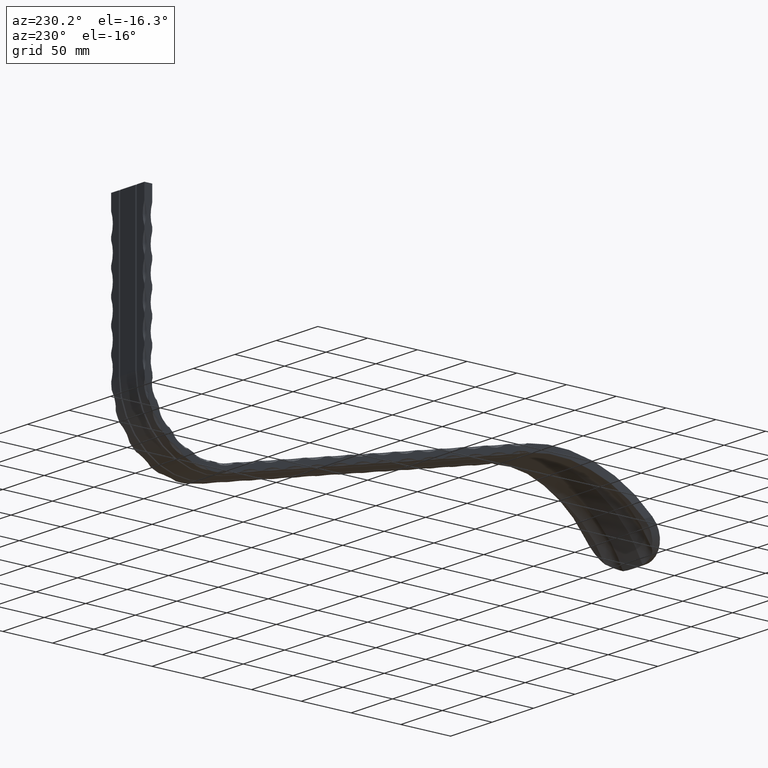
[diagram: clean part render]
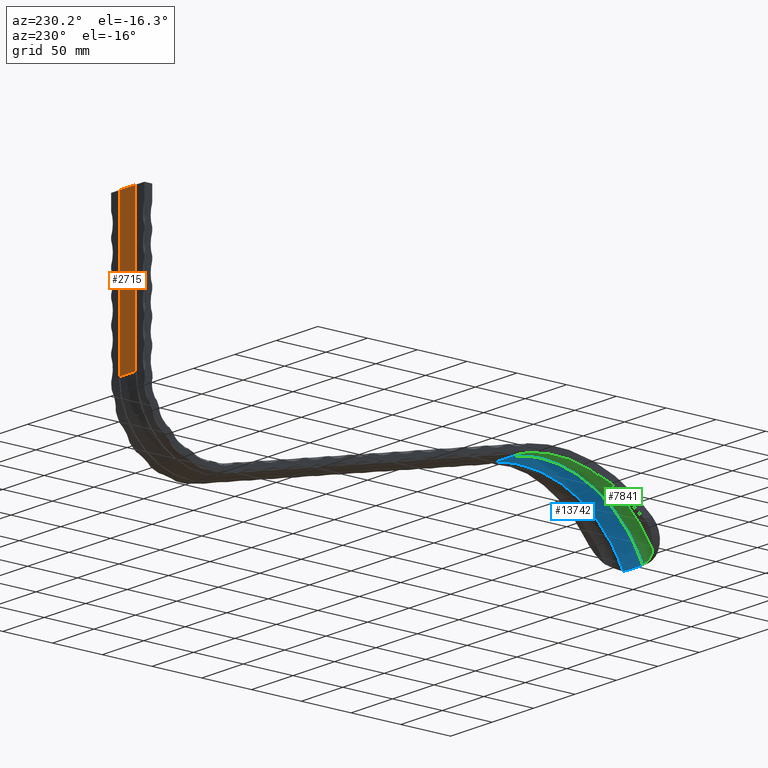
[diagram: same view with three faces highlighted in distinct colors, each labeled with its STEP entity id]
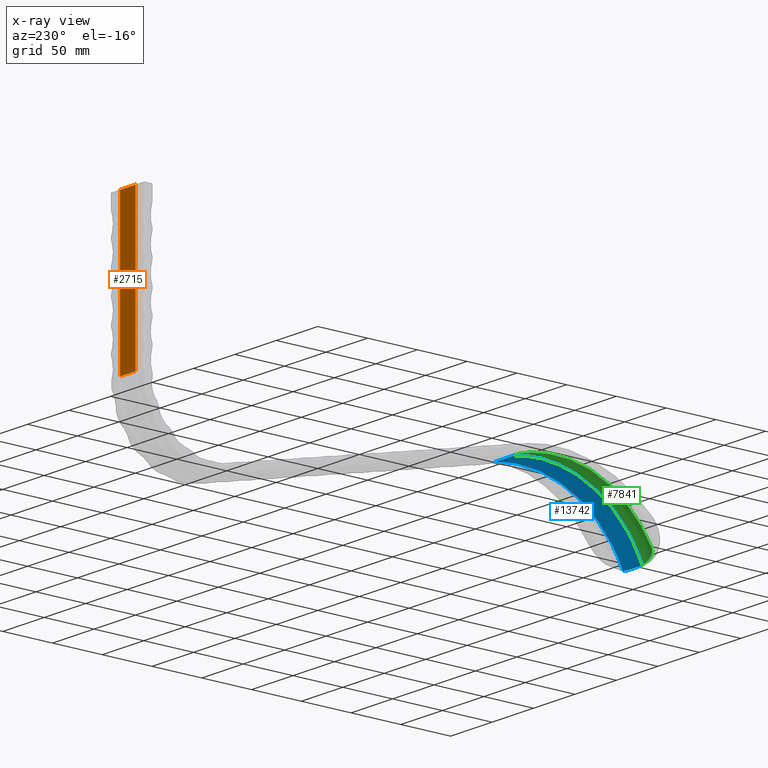
[diagram: x-ray of the same camera — body ghosted, the three highlighted faces saturated]
A machine part, auxiliary view with three faces highlighted in distinct colors.
The next image is the same camera in x-ray (body ghosted, the three faces saturated) — at least one of them is partly hidden behind the body in this view.
Their STEP definitions:

[orange] entity #2715 — the highlighted planar face has unit normal (0, -1, -0).
#849 = EDGE_CURVE ( 'NONE', #10065, #1119, #11257, .T. ) ;
#864 = CARTESIAN_POINT ( 'NONE',  ( 9.250000000000003600, 507.6900000000001700, 61.65778339167194100 ) ) ;
#1119 = VERTEX_POINT ( 'NONE', #864 ) ;
#1323 = VERTEX_POINT ( 'NONE', #3757 ) ;
#1536 = LINE ( 'NONE', #1767, #5044 ) ;
#1767 = CARTESIAN_POINT ( 'NONE',  ( -9.250000000000003600, 507.6900000000001100, 211.6577833916719300 ) ) ;
#2266 = CARTESIAN_POINT ( 'NONE',  ( -9.250000000000003600, 507.6900000000001700, 61.65778339167194100 ) ) ;
#2715 = ADVANCED_FACE ( 'NONE', ( #12135 ), #11507, .F. ) ;
#3033 = LINE ( 'NONE', #12992, #6910 ) ;
#3388 = VERTEX_POINT ( 'NONE', #11324 ) ;
#3757 = CARTESIAN_POINT ( 'NONE',  ( 9.250000000000003600, 507.6900000000001100, 211.6577833916719300 ) ) ;
#3983 = CARTESIAN_POINT ( 'NONE',  ( -9.250000000000003600, 507.6900000000001700, 61.65778339167194100 ) ) ;
#4158 = LINE ( 'NONE', #8219, #10446 ) ;
#4434 = ORIENTED_EDGE ( 'NONE', *, *, #5677, .T. ) ;
#4537 = DIRECTION ( 'NONE',  ( 0.0000000000000000000, -7.401486830834377300E-016, 1.000000000000000000 ) ) ;
#5044 = VECTOR ( 'NONE', #7820, 1000.000000000000000 ) ;
#5677 = EDGE_CURVE ( 'NONE', #3388, #1323, #1536, .T. ) ;
#5804 = EDGE_CURVE ( 'NONE', #10065, #3388, #3033, .T. ) ;
#6117 = EDGE_LOOP ( 'NONE', ( #12118, #13974, #4434, #6958 ) ) ;
#6910 = VECTOR ( 'NONE', #8406, 1000.000000000000000 ) ;
#6958 = ORIENTED_EDGE ( 'NONE', *, *, #13738, .F. ) ;
#7820 = DIRECTION ( 'NONE',  ( 1.000000000000000000, 0.0000000000000000000, 0.0000000000000000000 ) ) ;
#8219 = CARTESIAN_POINT ( 'NONE',  ( 9.250000000000003600, 507.6900000000001700, 61.65778339167194100 ) ) ;
#8396 = AXIS2_PLACEMENT_3D ( 'NONE', #2266, #13910, #12762 ) ;
#8406 = DIRECTION ( 'NONE',  ( 0.0000000000000000000, -7.401486830834377300E-016, 1.000000000000000000 ) ) ;
#9035 = VECTOR ( 'NONE', #12247, 1000.000000000000000 ) ;
#10065 = VERTEX_POINT ( 'NONE', #12152 ) ;
#10446 = VECTOR ( 'NONE', #4537, 1000.000000000000000 ) ;
#11257 = LINE ( 'NONE', #3983, #9035 ) ;
#11324 = CARTESIAN_POINT ( 'NONE',  ( -9.250000000000003600, 507.6900000000001100, 211.6577833916719300 ) ) ;
#11507 = PLANE ( 'NONE',  #8396 ) ;
#12118 = ORIENTED_EDGE ( 'NONE', *, *, #849, .F. ) ;
#12135 = FACE_OUTER_BOUND ( 'NONE', #6117, .T. ) ;
#12152 = CARTESIAN_POINT ( 'NONE',  ( -9.250000000000003600, 507.6900000000001700, 61.65778339167194100 ) ) ;
#12247 = DIRECTION ( 'NONE',  ( 1.000000000000000000, 0.0000000000000000000, 0.0000000000000000000 ) ) ;
#12762 = DIRECTION ( 'NONE',  ( 0.0000000000000000000, 7.401486830834377300E-016, -1.000000000000000000 ) ) ;
#12992 = CARTESIAN_POINT ( 'NONE',  ( -9.250000000000003600, 507.6900000000001700, 61.65778339167194100 ) ) ;
#13738 = EDGE_CURVE ( 'NONE', #1119, #1323, #4158, .T. ) ;
#13910 = DIRECTION ( 'NONE',  ( 0.0000000000000000000, -1.000000000000000000, -7.401486830834377300E-016 ) ) ;
#13974 = ORIENTED_EDGE ( 'NONE', *, *, #5804, .T. ) ;

[blue] entity #13742 — the highlighted face is a freeform B-spline surface patch.
#18 = CARTESIAN_POINT ( 'NONE',  ( 7.403179913532664400, 72.30505748251125900, 62.92709621979816600 ) ) ;
#56 = CARTESIAN_POINT ( 'NONE',  ( -11.81043221638763200, 102.2608927560339700, 67.02334897158243600 ) ) ;
#67 = CARTESIAN_POINT ( 'NONE',  ( 10.38370225364885300, 59.11701464166563400, 58.43661319020490900 ) ) ;
#69 = CARTESIAN_POINT ( 'NONE',  ( -9.880147323272851200, 0.08500317423733330700, 0.1660029965502953000 ) ) ;
#85 = CARTESIAN_POINT ( 'NONE',  ( 11.75817880353226400, 0.2516507839999638800, 0.4913219196046924000 ) ) ;
#118 = CARTESIAN_POINT ( 'NONE',  ( 10.31700453758251300, 35.59462290608872300, 44.81947173569917500 ) ) ;
#162 = CARTESIAN_POINT ( 'NONE',  ( 6.580159282426955700, 17.27628276686508000, 27.70021113438073000 ) ) ;
#193 = EDGE_CURVE ( 'NONE', #1958, #13304, #6077, .T. ) ;
#206 = CARTESIAN_POINT ( 'NONE',  ( 22.53850891010046100, 3.500052415487004500, 6.833940755404841000 ) ) ;
#223 = CARTESIAN_POINT ( 'NONE',  ( 11.00064123882054500, 118.4047976598270100, 65.79987141206066800 ) ) ;
#258 = CARTESIAN_POINT ( 'NONE',  ( -2.602085213965210600E-015, -8.917020735606022800E-016, 3.962547617048598700E-016 ) ) ;
#276 = CARTESIAN_POINT ( 'NONE',  ( 9.249999999999996400, 129.5362275316453500, 63.87778339167195400 ) ) ;
#313 = CARTESIAN_POINT ( 'NONE',  ( -7.905447883589416400, 112.3643234729306500, 67.03286456432536500 ) ) ;
#344 = ORIENTED_EDGE ( 'NONE', *, *, #14417, .F. ) ;
#364 = CARTESIAN_POINT ( 'NONE',  ( 0.0000000000000000000, 129.5362275316456400, 63.87778339167201800 ) ) ;
#372 = VECTOR ( 'NONE', #14727, 1000.000000000000000 ) ;
#379 = CARTESIAN_POINT ( 'NONE',  ( 11.68936076068935400, 109.5357579887142500, 66.80344939611330800 ) ) ;
#413 = CARTESIAN_POINT ( 'NONE',  ( 5.415367934821164300, 121.9823624694767300, 65.26569339611406000 ) ) ;
#468 = CARTESIAN_POINT ( 'NONE',  ( 2.050276107535132100E-015, 25.36067386072030800, 36.39959432883944900 ) ) ;
#498 = CARTESIAN_POINT ( 'NONE',  ( -6.031426997238459500, -2.707560958147618200E-016, -2.415807528498240500E-017 ) ) ;
#524 = CARTESIAN_POINT ( 'NONE',  ( -13.37536841349792200, 85.22214338372666000, 65.90305557772137500 ) ) ;
#572 = CARTESIAN_POINT ( 'NONE',  ( -12.66083940543588100, 121.9823624694769500, 65.26569339611434400 ) ) ;
#623 = CARTESIAN_POINT ( 'NONE',  ( -22.87792566043156100, 2.252062529198544600E-015, -1.000772037333792100E-015 ) ) ;
#679 = CARTESIAN_POINT ( 'NONE',  ( -19.56308528497958600, 47.19459668661706100, 52.54529094468065900 ) ) ;
#736 = CARTESIAN_POINT ( 'NONE',  ( -40.00000000000000000, 4.848123607963286300E-015, -2.154410225063400500E-015 ) ) ;
#784 = CARTESIAN_POINT ( 'NONE',  ( -25.68948338871786400, 85.22214338372668900, 65.90305557772136100 ) ) ;
#788 = CARTESIAN_POINT ( 'NONE',  ( -11.20469707322421700, 127.6223431320658800, 64.22886167756691100 ) ) ;
#842 = CARTESIAN_POINT ( 'NONE',  ( -10.85657498498102700, 124.0420295656556200, 64.87244887318622900 ) ) ;
#895 = VERTEX_POINT ( 'NONE', #498 ) ;
#985 = CARTESIAN_POINT ( 'NONE',  ( -27.37819151240252700, 72.30505748251125900, 62.92709621979816600 ) ) ;
#1007 = CARTESIAN_POINT ( 'NONE',  ( 34.31044977359980700, 25.36067386072029400, 36.39959432883946300 ) ) ;
#1112 = CARTESIAN_POINT ( 'NONE',  ( -11.80083037346580400, 34.17793281568767600, 43.56244291603130800 ) ) ;
#1127 = CARTESIAN_POINT ( 'NONE',  ( 28.74380303220848300, 17.27628276686508400, 27.70021113438080100 ) ) ;
#1146 = CARTESIAN_POINT ( 'NONE',  ( 11.78269665822006500, 19.80877292771896200, 30.33833745367066500 ) ) ;
#1166 = CARTESIAN_POINT ( 'NONE',  ( -11.78682275732336000, 47.73095438219807800, 52.53181081990776100 ) ) ;
#1180 = CARTESIAN_POINT ( 'NONE',  ( 21.13203725356661200, 112.3643234729306500, 67.03286456432536500 ) ) ;
#1197 = CARTESIAN_POINT ( 'NONE',  ( 11.63908042684516500, 0.9926386752840050700, 1.937831612316308400 ) ) ;
#1207 = LINE ( 'NONE', #13282, #5445 ) ;
#1234 = CARTESIAN_POINT ( 'NONE',  ( 3.605795458987304700, 3.500052415487011200, 6.833940755404782400 ) ) ;
#1251 = CARTESIAN_POINT ( 'NONE',  ( 11.79977377828248000, 11.62391951136785900, 20.21848918043181300 ) ) ;
#1283 = CARTESIAN_POINT ( 'NONE',  ( 22.10639847467048800, 7.955958530339771100, 15.53421000446203400 ) ) ;
#1295 = VERTEX_POINT ( 'NONE', #2390 ) ;
#1298 = CARTESIAN_POINT ( 'NONE',  ( 11.78681981588979800, 47.73641422618576500, 52.53493915159261000 ) ) ;
#1325 = CARTESIAN_POINT ( 'NONE',  ( 20.23494224577617800, 35.59462290608885800, 44.81947173569913200 ) ) ;
#1368 = CARTESIAN_POINT ( 'NONE',  ( 14.62224512051950500, 7.955958530339748900, 15.53421000446187300 ) ) ;
#1420 = CARTESIAN_POINT ( 'NONE',  ( 12.66083940543586200, 121.9823624694768500, 65.26569339611406000 ) ) ;
#1471 = CARTESIAN_POINT ( 'NONE',  ( -3.791359343221627000, 17.27628276686507300, 27.70021113438071200 ) ) ;
#1522 = CARTESIAN_POINT ( 'NONE',  ( 4.020007674193657900, 35.59462290608874500, 44.81947173569916700 ) ) ;
#1565 = VERTEX_POINT ( 'NONE', #7847 ) ;
#1580 = CARTESIAN_POINT ( 'NONE',  ( -7.230088466770527400, 59.11701464166561200, 58.43661319020488800 ) ) ;
#1635 = CARTESIAN_POINT ( 'NONE',  ( -10.35117696749857800, 47.19459668661706100, 52.54529094468082200 ) ) ;
#1682 = CARTESIAN_POINT ( 'NONE',  ( -4.708080572082228500, 85.22214338372678800, 65.90305557772133200 ) ) ;
#1732 = CARTESIAN_POINT ( 'NONE',  ( -15.48464498088886100, 121.9823624694767300, 65.26569339611398800 ) ) ;
#1786 = CARTESIAN_POINT ( 'NONE',  ( -21.55964133906631000, 85.22214338372658900, 65.90305557772138900 ) ) ;
#1839 = CARTESIAN_POINT ( 'NONE',  ( -14.72977730987250800, 3.500052415487011600, 6.833940755404795700 ) ) ;
#1889 = CARTESIAN_POINT ( 'NONE',  ( -32.14901583030653900, 25.36067386072030100, 36.39959432883944900 ) ) ;
#1943 = CARTESIAN_POINT ( 'NONE',  ( -20.47181174944877200, 97.04645900242032000, 67.03489217270130500 ) ) ;
#1958 = VERTEX_POINT ( 'NONE', #9878 ) ;
#2004 = CARTESIAN_POINT ( 'NONE',  ( -10.88839899601893500, 120.8340230466338300, 65.41595949450304200 ) ) ;
#2058 = CARTESIAN_POINT ( 'NONE',  ( -29.15421631428028300, 59.11701464166561200, 58.43661319020490200 ) ) ;
#2106 = DIRECTION ( 'NONE',  ( 1.000000000000000000, -1.111202159806315700E-016, 4.937962578485046000E-017 ) ) ;
#2155 = CARTESIAN_POINT ( 'NONE',  ( -19.99999999999999300, 129.5362275316453800, 63.87778339167196900 ) ) ;
#2171 = CARTESIAN_POINT ( 'NONE',  ( 27.68074867421228900, 25.36067386072032500, 36.39959432883944900 ) ) ;
#2207 = CARTESIAN_POINT ( 'NONE',  ( -8.024661090615836700, 0.0000000000000000000, 0.0000000000000000000 ) ) ;
#2212 = CARTESIAN_POINT ( 'NONE',  ( -11.75316065673061800, 97.38375303146172300, 66.90093989095410600 ) ) ;
#2268 = CARTESIAN_POINT ( 'NONE',  ( 24.17677687775272900, 97.04645900242043400, 67.03489217270151800 ) ) ;
#2275 = ORIENTED_EDGE ( 'NONE', *, *, #193, .F. ) ;
#2300 = CARTESIAN_POINT ( 'NONE',  ( 6.031426997238466600, -1.608886340748398700E-015, 5.704805344683544500E-016 ) ) ;
#2343 = CARTESIAN_POINT ( 'NONE',  ( 11.79118234967663500, 42.17423768013532700, 49.14734814822917000 ) ) ;
#2367 = CARTESIAN_POINT ( 'NONE',  ( -11.78591044951666900, 50.59934110129328400, 54.09412313630680600 ) ) ;
#2390 = CARTESIAN_POINT ( 'NONE',  ( -10.75000000000000000, 129.5362275316165300, 63.87778339167482500 ) ) ;
#2422 = CARTESIAN_POINT ( 'NONE',  ( -11.74980552857411600, 94.14106172534779700, 66.68774777415667600 ) ) ;
#2432 = CARTESIAN_POINT ( 'NONE',  ( 13.37536841349785500, 85.22214338372668900, 65.90305557772130400 ) ) ;
#2447 = CARTESIAN_POINT ( 'NONE',  ( 11.80526490036325200, 31.61448155796262700, 41.52993813208860300 ) ) ;
#2478 = CARTESIAN_POINT ( 'NONE',  ( 7.715189909232681700, 97.04645900242040600, 67.03489217270151800 ) ) ;
#2495 = CARTESIAN_POINT ( 'NONE',  ( 11.79885450722159700, 59.42748740127873900, 58.26314993223690000 ) ) ;
#2531 = CARTESIAN_POINT ( 'NONE',  ( -9.249999999999996400, 129.5362275316453500, 63.87778339167195400 ) ) ;
#2533 = CARTESIAN_POINT ( 'NONE',  ( 10.35117696749860100, 47.19459668661706100, 52.54529094468081500 ) ) ;
#2547 = CARTESIAN_POINT ( 'NONE',  ( 11.73594897206477100, 108.7244139845777900, 66.85806127672906000 ) ) ;
#2581 = CARTESIAN_POINT ( 'NONE',  ( 10.17511305478973100, -1.889258731583633600E-015, 8.395492067134014000E-016 ) ) ;
#2624 = CARTESIAN_POINT ( 'NONE',  ( 10.51697435820434700, 112.3643234729306500, 67.03286456432537900 ) ) ;
#2679 = CARTESIAN_POINT ( 'NONE',  ( -4.020007674193662300, 35.59462290608873800, 44.81947173569921700 ) ) ;
#2695 = CARTESIAN_POINT ( 'NONE',  ( 11.83923990919584800, 103.8451952979849300, 67.03112168294029500 ) ) ;
#2728 = CARTESIAN_POINT ( 'NONE',  ( -5.589288638860146800, 129.5362275316452400, 63.87778339167195400 ) ) ;
#2746 = CARTESIAN_POINT ( 'NONE',  ( 11.12126487944580300, 116.7986617295245100, 66.03281997112876000 ) ) ;
#2768 = VERTEX_POINT ( 'NONE', #2531 ) ;
#2778 = CARTESIAN_POINT ( 'NONE',  ( -10.19392896051810900, 3.500052415487001900, 6.833940755404797500 ) ) ;
#2824 = CARTESIAN_POINT ( 'NONE',  ( -3.554489243155166500, -4.967264611603680800E-016, 2.207354130215816400E-016 ) ) ;
#2880 = CARTESIAN_POINT ( 'NONE',  ( -7.567761473417697000, 85.22214338372668900, 65.90305557772136100 ) ) ;
#2905 = EDGE_CURVE ( 'NONE', #2768, #13443, #3441, .T. ) ;
#2933 = CARTESIAN_POINT ( 'NONE',  ( -30.61009515220487400, 35.59462290608872300, 44.81947173569918900 ) ) ;
#2982 = CARTESIAN_POINT ( 'NONE',  ( -21.13203725356659700, 112.3643234729306500, 67.03286456432536500 ) ) ;
#3032 = CARTESIAN_POINT ( 'NONE',  ( -36.44356263093361300, 3.500052415487006300, 6.833940755404794000 ) ) ;
#3084 = CARTESIAN_POINT ( 'NONE',  ( -28.74380303220852500, 17.27628276686509400, 27.70021113438079400 ) ) ;
#3135 = CARTESIAN_POINT ( 'NONE',  ( -13.78623825918459500, 59.11701464166576900, 58.43661319020495200 ) ) ;
#3157 = EDGE_CURVE ( 'NONE', #1565, #10700, #13259, .T. ) ;
#3193 = CARTESIAN_POINT ( 'NONE',  ( -10.99908521133686700, 118.4294985456081700, 65.79615297433724700 ) ) ;
#3286 = CARTESIAN_POINT ( 'NONE',  ( -10.84724245969427200, 123.2391953697842400, 65.01235351996761800 ) ) ;
#3332 = CARTESIAN_POINT ( 'NONE',  ( -22.22461293474200500, 112.3643234729306500, 67.03286456432536500 ) ) ;
#3383 = CARTESIAN_POINT ( 'NONE',  ( -11.78003603288982900, 10.70408641612005400, 18.90186397851136500 ) ) ;
#3396 = CARTESIAN_POINT ( 'NONE',  ( 20.97860003568257500, 121.9823624694768400, 65.26569339611418700 ) ) ;
#3435 = CARTESIAN_POINT ( 'NONE',  ( -11.80779480624579500, 13.56538885223082100, 22.85221066864704300 ) ) ;
#3441 = LINE ( 'NONE', #5084, #14006 ) ;
#3450 = CARTESIAN_POINT ( 'NONE',  ( 36.44356263093362700, 3.500052415486999200, 6.833940755404800200 ) ) ;
#3491 = CARTESIAN_POINT ( 'NONE',  ( -11.51250888254417300, 4.010679243558021400, 7.718397069481088800 ) ) ;
#3494 = ORIENTED_EDGE ( 'NONE', *, *, #3157, .T. ) ;
#3504 = CARTESIAN_POINT ( 'NONE',  ( 30.84539792786141300, 47.19459668661706100, 52.54529094468082200 ) ) ;
#3524 = CARTESIAN_POINT ( 'NONE',  ( 11.80394575143653100, 63.98270834674343600, 60.02321580577071800 ) ) ;
#3544 = CARTESIAN_POINT ( 'NONE',  ( -11.76518548074305500, 10.24773894972734700, 18.22775882071661600 ) ) ;
#3608 = CARTESIAN_POINT ( 'NONE',  ( 3.791359343221611100, 17.27628276686508000, 27.70021113438072300 ) ) ;
#3610 = CARTESIAN_POINT ( 'NONE',  ( -7.971654482363888400, 2.777286233546701300E-016, 4.904362914911065700E-016 ) ) ;
#3660 = CARTESIAN_POINT ( 'NONE',  ( 10.45033698343380200, 85.22214338372668900, 65.90305557772137500 ) ) ;
#3675 = CARTESIAN_POINT ( 'NONE',  ( 11.79650044503125500, 24.35993659979557100, 34.99809428773271200 ) ) ;
#3710 = CARTESIAN_POINT ( 'NONE',  ( 7.065265840463317700, 47.19459668661706100, 52.54529094468082200 ) ) ;
#3749 = CARTESIAN_POINT ( 'NONE',  ( 14.72977730987252300, 3.500052415486994800, 6.833940755404770000 ) ) ;
#3764 = CARTESIAN_POINT ( 'NONE',  ( 11.78441809180322200, 82.80042754447532600, 65.17507436132466100 ) ) ;
#3799 = CARTESIAN_POINT ( 'NONE',  ( 18.15211672561023400, 121.9823624694768700, 65.26569339611414500 ) ) ;
#3850 = CARTESIAN_POINT ( 'NONE',  ( -6.173057963905077500, -2.057505393505120000E-016, 9.143146949903623200E-017 ) ) ;
#3904 = CARTESIAN_POINT ( 'NONE',  ( -10.41785926814523400, 72.30505748251125900, 62.92709621979816600 ) ) ;
#3952 = CARTESIAN_POINT ( 'NONE',  ( -10.21788343303418300, 7.955958530339762200, 15.53421000446194000 ) ) ;
#4009 = CARTESIAN_POINT ( 'NONE',  ( -3.892650016285587300, 25.36067386072032900, 36.39959432883948400 ) ) ;
#4064 = CARTESIAN_POINT ( 'NONE',  ( -8.026884349541049300, 121.9823624694768400, 65.26569339611418700 ) ) ;
#4114 = CARTESIAN_POINT ( 'NONE',  ( -31.66692429116887200, 3.584656747286071500E-015, -1.592950546271244900E-015 ) ) ;
#4130 = CARTESIAN_POINT ( 'NONE',  ( 6.031426997238466600, -1.608886340748398700E-015, 5.704805344683544500E-016 ) ) ;
#4162 = CARTESIAN_POINT ( 'NONE',  ( -39.02164999675353100, 3.500052415487006300, 6.833940755404794000 ) ) ;
#4218 = CARTESIAN_POINT ( 'NONE',  ( -32.62222426840097000, 35.59462290608872300, 44.81947173569918900 ) ) ;
#4270 = CARTESIAN_POINT ( 'NONE',  ( -25.82983894828134600, 72.30505748251125900, 62.92709621979816600 ) ) ;
#4287 = DIRECTION ( 'NONE',  ( 1.000000000000000000, 0.0000000000000000000, 0.0000000000000000000 ) ) ;
#4302 = EDGE_CURVE ( 'NONE', #5043, #14024, #1207, .T. ) ;
#4315 = CARTESIAN_POINT ( 'NONE',  ( -18.19958115078124900, 72.30505748251131600, 62.92709621979823700 ) ) ;
#4475 = CARTESIAN_POINT ( 'NONE',  ( -10.93705767691382700, 125.6475506343427100, 64.58750466290077000 ) ) ;
#4530 = EDGE_CURVE ( 'NONE', #1295, #2768, #14174, .T. ) ;
#4576 = CARTESIAN_POINT ( 'NONE',  ( -11.76349829759162400, 87.67401343738676200, 65.98731359861029900 ) ) ;
#4588 = CARTESIAN_POINT ( 'NONE',  ( 21.55964133906625700, 85.22214338372670300, 65.90305557772141800 ) ) ;
#4628 = CARTESIAN_POINT ( 'NONE',  ( -11.66625813935384300, 8.043331390261657900, 14.79747263102987100 ) ) ;
#4641 = CARTESIAN_POINT ( 'NONE',  ( 37.77611557485672500, 7.955958530339758600, 15.53421000446194400 ) ) ;
#4742 = CARTESIAN_POINT ( 'NONE',  ( 24.03343041150444400, 59.11701464166574700, 58.43661319020476000 ) ) ;
#4789 = CARTESIAN_POINT ( 'NONE',  ( 13.58236222939418700, 72.30505748251125900, 62.92709621979822300 ) ) ;
#4809 = CARTESIAN_POINT ( 'NONE',  ( 11.71190142926555400, 8.895672851380476600, 16.17162121174572000 ) ) ;
#4828 = CARTESIAN_POINT ( 'NONE',  ( -19.99999999999998900, 129.5362275316453500, 63.87778339167195400 ) ) ;
#4838 = CARTESIAN_POINT ( 'NONE',  ( 13.78623825918456600, 59.11701464166565500, 58.43661319020476700 ) ) ;
#4874 = DIRECTION ( 'NONE',  ( 1.000000000000000000, 0.0000000000000000000, 0.0000000000000000000 ) ) ;
#4885 = CARTESIAN_POINT ( 'NONE',  ( 8.122258747352770300, 129.5362275316453800, 63.87778339167196900 ) ) ;
#4901 = CARTESIAN_POINT ( 'NONE',  ( 11.77891583214990800, 84.40227244113501100, 65.45492618698992300 ) ) ;
#4928 = EDGE_CURVE ( 'NONE', #895, #13304, #7771, .T. ) ;
#4935 = CARTESIAN_POINT ( 'NONE',  ( 10.25544842605363600, 17.27628276686507600, 27.70021113438072300 ) ) ;
#4950 = CARTESIAN_POINT ( 'NONE',  ( 11.79692101819449600, 129.5362275317446600, 63.87778339164496100 ) ) ;
#4983 = CARTESIAN_POINT ( 'NONE',  ( 15.04784216174944200, 129.5362275316454900, 63.87778339167203300 ) ) ;
#5035 = CARTESIAN_POINT ( 'NONE',  ( -4.908528516595181300, 97.04645900242040600, 67.03489217270160300 ) ) ;
#5043 = VERTEX_POINT ( 'NONE', #6585 ) ;
#5084 = CARTESIAN_POINT ( 'NONE',  ( -9.249999999999996400, 129.5362275316453500, 63.87778339167195400 ) ) ;
#5086 = CARTESIAN_POINT ( 'NONE',  ( -10.51697435820434200, 112.3643234729306500, 67.03286456432536500 ) ) ;
#5140 = CARTESIAN_POINT ( 'NONE',  ( 4.167075653973355100, 47.19459668661713900, 52.54529094468091400 ) ) ;
#5150 = EDGE_CURVE ( 'NONE', #895, #10700, #10618, .T. ) ;
#5188 = CARTESIAN_POINT ( 'NONE',  ( -4.242383922065475500E-015, 121.9823624694769400, 65.26569339611431500 ) ) ;
#5234 = CARTESIAN_POINT ( 'NONE',  ( 3.892650016285589500, 25.36067386072028600, 36.39959432883951300 ) ) ;
#5288 = CARTESIAN_POINT ( 'NONE',  ( -20.23494224577613600, 35.59462290608868100, 44.81947173569931000 ) ) ;
#5338 = CARTESIAN_POINT ( 'NONE',  ( -27.44879404877855900, 59.11701464166561200, 58.43661319020490900 ) ) ;
#5385 = CARTESIAN_POINT ( 'NONE',  ( -10.54093803292940000, 121.9823624694768400, 65.26569339611418700 ) ) ;
#5440 = CARTESIAN_POINT ( 'NONE',  ( -24.29047833394766100, 85.22214338372668900, 65.90305557772136100 ) ) ;
#5445 = VECTOR ( 'NONE', #7340, 1000.000000000000000 ) ;
#5498 = CARTESIAN_POINT ( 'NONE',  ( -26.49019778588874600, 35.59462290608873800, 44.81947173569914600 ) ) ;
#5506 = CARTESIAN_POINT ( 'NONE',  ( -11.63102291140517500, 129.1627606892308800, 63.94640235198551200 ) ) ;
#5655 = CARTESIAN_POINT ( 'NONE',  ( -11.52176805320825400, 112.0045377175104000, 66.60459384019782200 ) ) ;
#5699 = CARTESIAN_POINT ( 'NONE',  ( -30.84539792786140900, 47.19459668661706100, 52.54529094468080800 ) ) ;
#5749 = CARTESIAN_POINT ( 'NONE',  ( -11.78592532416173500, 20.95280993609539500, 31.52271364650220100 ) ) ;
#5760 = CARTESIAN_POINT ( 'NONE',  ( 40.00000000000000000, -3.357369187813690300E-015, 1.491948451078641300E-015 ) ) ;
#5790 = CARTESIAN_POINT ( 'NONE',  ( 9.876851444852452000, 0.1058067520901733400, 0.2065887813985362600 ) ) ;
#5798 = CARTESIAN_POINT ( 'NONE',  ( -11.58433649134665400, 6.380512801084495100, 11.99307906801753300 ) ) ;
#5828 = CARTESIAN_POINT ( 'NONE',  ( 11.78054156620117300, 17.64932247975349700, 27.90261678982010500 ) ) ;
#5841 = CARTESIAN_POINT ( 'NONE',  ( 11.75817880353226400, 0.2516507839999638800, 0.4913219196046924000 ) ) ;
#5864 = CARTESIAN_POINT ( 'NONE',  ( 32.62222426840097700, 35.59462290608872300, 44.81947173569917500 ) ) ;
#5887 = CARTESIAN_POINT ( 'NONE',  ( 11.80082332406718100, 74.84335533390516600, 63.46006211993075400 ) ) ;
#5921 = CARTESIAN_POINT ( 'NONE',  ( 19.10416666666667900, 129.5362275316453800, 63.87778339167196900 ) ) ;
#5936 = CARTESIAN_POINT ( 'NONE',  ( 11.79229355470240200, 23.20217991708256400, 33.85029006479405900 ) ) ;
#5958 = CARTESIAN_POINT ( 'NONE',  ( -11.78382423233320300, 17.68105799888104800, 27.88880926614168500 ) ) ;
#5972 = CARTESIAN_POINT ( 'NONE',  ( 16.87748520472407100, 97.04645900242049100, 67.03489217270150400 ) ) ;
#5982 = VECTOR ( 'NONE', #2106, 1000.000000000000000 ) ;
#5990 = CARTESIAN_POINT ( 'NONE',  ( 11.76480464462452400, 10.23687974676026400, 18.21154418344120900 ) ) ;
#6026 = CARTESIAN_POINT ( 'NONE',  ( 6.727561751843291300, 25.36067386072030400, 36.39959432883946300 ) ) ;
#6043 = CARTESIAN_POINT ( 'NONE',  ( 11.80084099959184100, 34.17078714894253000, 43.55696956123313900 ) ) ;
#6076 = CARTESIAN_POINT ( 'NONE',  ( 14.14452570976565400, 35.59462290608865200, 44.81947173569917500 ) ) ;
#6077 = B_SPLINE_CURVE_WITH_KNOTS ( 'NONE', 3,
 ( #11401, #5506, #10371, #13852, #788, #7900, #4475, #842, #3286, #9083, #2004, #3193, #6747, #12751, #5655, #13952, #7062, #9481, #15345, #8266, #56, #2212, #2422, #4576, #12903, #8369, #15240, #10467, #9278, #10519, #11655, #2367, #1166, #9435, #8152, #1112, #15289, #9382, #14055, #5749, #11700, #5958, #14160, #14269, #3435, #10620, #10676, #3383, #3544, #7165, #4628, #5798, #6952, #3491, #12851, #14104, #11809, #11862 ),
 .UNSPECIFIED., .F., .F.,
 ( 4, 2, 2, 2, 2, 2, 2, 2, 2, 2, 2, 2, 2, 2, 2, 2, 2, 2, 2, 2, 2, 2, 2, 2, 2, 2, 2, 2, 4 ),
 ( 0.0000000000000000000, 0.001213285690347573700, 0.002426571380695147500, 0.004853142761390205600, 0.007279714142085264200, 0.009706285522780322800, 0.01455942828417043800, 0.01941257104556055500, 0.02183914242625559200, 0.02426571380695062600, 0.02911885656834069600, 0.03882514209112079800, 0.04853142761390090400, 0.05823771313668099600, 0.06794399865946108800, 0.07765028418224118000, 0.08735656970502130000, 0.09706285522780140600, 0.1067691407505815100, 0.1164754262733616000, 0.1213285690347516700, 0.1261817117961417100, 0.1310348545575317800, 0.1334614259382268200, 0.1358879973189218200, 0.1407411400803118800, 0.1455942828417019200, 0.1504474256030919900, 0.1553005683644820300 ),
 .UNSPECIFIED. ) ;
#6119 = CARTESIAN_POINT ( 'NONE',  ( 20.86130679667701700, 25.36067386072025100, 36.39959432883950500 ) ) ;
#6166 = CARTESIAN_POINT ( 'NONE',  ( 7.905447883589421700, 112.3643234729306600, 67.03286456432536500 ) ) ;
#6217 = CARTESIAN_POINT ( 'NONE',  ( 4.908528516595165300, 97.04645900242044800, 67.03489217270178800 ) ) ;
#6270 = CARTESIAN_POINT ( 'NONE',  ( 4.511832017894444200, 72.30505748251141500, 62.92709621979825100 ) ) ;
#6318 = CARTESIAN_POINT ( 'NONE',  ( 2.373987665274796900E-014, 7.955958530339705300, 15.53421000446199300 ) ) ;
#6368 = FACE_OUTER_BOUND ( 'NONE', #12330, .T. ) ;
#6374 = CARTESIAN_POINT ( 'NONE',  ( -5.415367934821161600, 121.9823624694768300, 65.26569339611417300 ) ) ;
#6427 = CARTESIAN_POINT ( 'NONE',  ( -3.605795458987294500, 3.500052415487015600, 6.833940755404793100 ) ) ;
#6473 = CARTESIAN_POINT ( 'NONE',  ( -30.98356939047032900, 3.500052415487001900, 6.833940755404784200 ) ) ;
#6525 = CARTESIAN_POINT ( 'NONE',  ( -19.06168137911923900, 112.3643234729308300, 67.03286456432555000 ) ) ;
#6583 = CARTESIAN_POINT ( 'NONE',  ( -14.44670308546794000, 17.27628276686506900, 27.70021113438078000 ) ) ;
#6585 = CARTESIAN_POINT ( 'NONE',  ( 10.75000000000322900, 129.5362275316453800, 63.87778339167194000 ) ) ;
#6639 = CARTESIAN_POINT ( 'NONE',  ( -19.10416666666666100, 129.5362275316453800, 63.87778339167198300 ) ) ;
#6747 = CARTESIAN_POINT ( 'NONE',  ( -11.11914231635970300, 116.8263194437944200, 66.02894243929124200 ) ) ;
#6813 = CARTESIAN_POINT ( 'NONE',  ( -19.99999999999998900, 129.5362275316453500, 63.87778339167195400 ) ) ;
#6952 = CARTESIAN_POINT ( 'NONE',  ( -11.54834857869067800, 5.577711099899420200, 10.57518098823547200 ) ) ;
#6966 = CARTESIAN_POINT ( 'NONE',  ( 22.91155394117280200, 97.04645900242043400, 67.03489217270151800 ) ) ;
#7022 = CARTESIAN_POINT ( 'NONE',  ( 30.11359233893713800, 7.955958530339762200, 15.53421000446190100 ) ) ;
#7062 = CARTESIAN_POINT ( 'NONE',  ( -11.73347528780249700, 108.7717246011116700, 66.85508712221214000 ) ) ;
#7073 = CARTESIAN_POINT ( 'NONE',  ( 20.00000000000001100, 129.5362275316453800, 63.87778339167196900 ) ) ;
#7142 = CARTESIAN_POINT ( 'NONE',  ( 11.80280250446944900, 26.72211519013628200, 37.23846785792994800 ) ) ;
#7165 = CARTESIAN_POINT ( 'NONE',  ( -11.71234356168572800, 8.904514008988273900, 16.18566164927131000 ) ) ;
#7175 = CARTESIAN_POINT ( 'NONE',  ( 13.17024007448442200, 97.04645900242049100, 67.03489217270163200 ) ) ;
#7177 = CARTESIAN_POINT ( 'NONE',  ( -6.031426997238459500, -2.707560958147618200E-016, -2.415807528498240500E-017 ) ) ;
#7225 = CARTESIAN_POINT ( 'NONE',  ( 14.81424235230981500, -2.117616821993303300E-015, 9.410270246771270900E-016 ) ) ;
#7272 = CARTESIAN_POINT ( 'NONE',  ( 16.04080881406686000, 112.3643234729304700, 67.03286456432559200 ) ) ;
#7319 = CARTESIAN_POINT ( 'NONE',  ( 10.41785926814523200, 72.30505748251123100, 62.92709621979813800 ) ) ;
#7340 = DIRECTION ( 'NONE',  ( 1.000000000000000000, 0.0000000000000000000, 0.0000000000000000000 ) ) ;
#7373 = CARTESIAN_POINT ( 'NONE',  ( 5.193921549429488100, 112.3643234729306200, 67.03286456432499600 ) ) ;
#7425 = CARTESIAN_POINT ( 'NONE',  ( -7.065265840463297300, 47.19459668661706100, 52.54529094468080800 ) ) ;
#7439 = CARTESIAN_POINT ( 'NONE',  ( 11.20214141088101000, 127.6096680994397700, 64.23117902055847100 ) ) ;
#7474 = CARTESIAN_POINT ( 'NONE',  ( 4.708080572082235600, 85.22214338372660300, 65.90305557772120400 ) ) ;
#7524 = CARTESIAN_POINT ( 'NONE',  ( 1.409919255658801100E-014, 47.19459668661701800, 52.54529094468071500 ) ) ;
#7539 = CARTESIAN_POINT ( 'NONE',  ( 11.79692101819449600, 129.5362275317446600, 63.87778339164496100 ) ) ;
#7576 = CARTESIAN_POINT ( 'NONE',  ( -6.727561751843281500, 25.36067386072029400, 36.39959432883946300 ) ) ;
#7625 = CARTESIAN_POINT ( 'NONE',  ( -13.58236222939407900, 72.30505748251118800, 62.92709621979809500 ) ) ;
#7685 = CARTESIAN_POINT ( 'NONE',  ( -37.33538842421798900, 4.444113307299679200E-015, -1.974876039641451100E-015 ) ) ;
#7735 = CARTESIAN_POINT ( 'NONE',  ( -30.11359233893707100, 7.955958530339756900, 15.53421000446191000 ) ) ;
#7771 = B_SPLINE_CURVE_WITH_KNOTS ( 'NONE', 3,
 ( #7177, #3610, #69, #8435 ),
 .UNSPECIFIED., .F., .F.,
 ( 4, 4 ),
 ( 0.0000000000000000000, 0.005738203713482025900 ),
 .UNSPECIFIED. ) ;
#7789 = CARTESIAN_POINT ( 'NONE',  ( -21.40951240104352800, 17.27628276686509400, 27.70021113438065500 ) ) ;
#7837 = CARTESIAN_POINT ( 'NONE',  ( -16.04080881406676400, 112.3643234729303900, 67.03286456432503800 ) ) ;
#7842 = EDGE_CURVE ( 'NONE', #13443, #5043, #11681, .T. ) ;
#7847 = CARTESIAN_POINT ( 'NONE',  ( 11.75817880353226400, 0.2516507839999638800, 0.4913219196046924000 ) ) ;
#7900 = CARTESIAN_POINT ( 'NONE',  ( -11.00663605088012700, 126.4444712767058800, 64.44349554479671800 ) ) ;
#8087 = ORIENTED_EDGE ( 'NONE', *, *, #4302, .T. ) ;
#8113 = CARTESIAN_POINT ( 'NONE',  ( 39.02164999675353800, 3.500052415486999200, 6.833940755404800200 ) ) ;
#8152 = CARTESIAN_POINT ( 'NONE',  ( -11.79389902922531300, 39.44504923762853100, 47.38289857003665200 ) ) ;
#8165 = CARTESIAN_POINT ( 'NONE',  ( 35.82288985332941400, 17.27628276686508000, 27.70021113438073000 ) ) ;
#8198 = CARTESIAN_POINT ( 'NONE',  ( 6.998140913248764900, -1.769451826814233400E-015, 4.777265822514254900E-016 ) ) ;
#8238 = CARTESIAN_POINT ( 'NONE',  ( 11.80439966057867500, 12.09959692701120900, 20.87789620175152200 ) ) ;
#8249 = VECTOR ( 'NONE', #4287, 1000.000000000000000 ) ;
#8266 = CARTESIAN_POINT ( 'NONE',  ( -11.83974014381888100, 103.8889429749940100, 67.03097967948163200 ) ) ;
#8279 = CARTESIAN_POINT ( 'NONE',  ( 30.61009515220487700, 35.59462290608872300, 44.81947173569917500 ) ) ;
#8334 = CARTESIAN_POINT ( 'NONE',  ( 17.43775814790101100, 129.5362275316452700, 63.87778339167189800 ) ) ;
#8369 = CARTESIAN_POINT ( 'NONE',  ( -11.79668099164664100, 78.05043553301486300, 64.23905895008024900 ) ) ;
#8380 = CARTESIAN_POINT ( 'NONE',  ( 7.230088466770521200, 59.11701464166561200, 58.43661319020487400 ) ) ;
#8389 = B_SPLINE_SURFACE_WITH_KNOTS ( 'NONE', 3, 3, ( 
 ( #5760, #8113, #4641, #8165, #1007, #5864, #3504, #12968, #9288, #14173, #2268, #10532, #3396, #7073 ),
 ( #9244, #3450, #15358, #11666, #14066, #8279, #9339, #15253, #9445, #11822, #6966, #1180, #11710, #5921 ),
 ( #14116, #10632, #7022, #1127, #2171, #11616, #12916, #4742, #13016, #4588, #9492, #13071, #3799, #8334 ),
 ( #10828, #206, #1283, #14373, #6119, #1325, #13168, #11873, #8485, #14422, #5972, #7272, #10685, #4983 ),
 ( #7225, #3749, #1368, #9636, #9682, #6076, #14278, #4838, #4789, #2432, #7175, #8432, #1420, #9593 ),
 ( #2581, #12018, #8525, #4935, #13213, #118, #2533, #67, #7319, #3660, #13122, #2624, #10880, #10779 ),
 ( #12064, #13265, #9544, #162, #6026, #14325, #3710, #8380, #18, #11970, #2478, #6166, #11919, #4885 ),
 ( #14467, #1234, #10737, #3608, #5234, #1522, #5140, #13366, #6270, #7474, #6217, #7373, #413, #12318 ),
 ( #258, #13527, #6318, #10930, #468, #14571, #7524, #9843, #11088, #9948, #8722, #9738, #5188, #364 ),
 ( #2824, #6427, #8570, #1471, #4009, #2679, #13420, #13316, #13477, #1682, #5035, #8673, #6374, #2728 ),
 ( #3850, #12114, #12267, #14668, #7576, #14514, #7425, #1580, #8770, #2880, #11139, #313, #4064, #11034 ),
 ( #8621, #2778, #3952, #9795, #10978, #12167, #1635, #12220, #3904, #14623, #9892, #5086, #5385, #12479 ),
 ( #12585, #1839, #8923, #6583, #13575, #8829, #12373, #3135, #7625, #524, #10150, #14928, #572, #13686 ),
 ( #623, #14872, #11191, #7789, #13739, #5288, #679, #9999, #4315, #8878, #8976, #7837, #1732, #13628 ),
 ( #4114, #6473, #7735, #3084, #9025, #5498, #10096, #11394, #14773, #1786, #1943, #6525, #13788, #10202 ),
 ( #7685, #3032, #11342, #14725, #1889, #2933, #12529, #5338, #4270, #5440, #10046, #2982, #11241, #6639 ),
 ( #736, #4162, #12428, #14825, #11292, #4218, #5699, #2058, #985, #784, #12844, #3332, #11596, #2155 ) ),
 .UNSPECIFIED., .F., .F., .F.,
 ( 4, 1, 1, 1, 2, 1, 1, 1, 2, 1, 1, 1, 4 ),
 ( 4, 1, 1, 1, 1, 1, 1, 1, 1, 1, 1, 4 ),
 ( 0.0000000000000000000, 0.08738112548793459900, 0.1747622509758692000, 0.2621433764638038100, 0.3495245019517384000, 0.4247622509758693900, 0.5000000000000002200, 0.5752377490241311600, 0.6504754980482619900, 0.7378566235361963000, 0.8252377490241309400, 0.9126188745120655800, 1.000000000000000000 ),
 ( 0.0000000000000000000, 0.1465739097629840900, 0.1866027999754631100, 0.2932824625251405100, 0.3733305017268598900, 0.4400345503001131300, 0.5600142915455937900, 0.6267388954060856300, 0.7067752066830049800, 0.8134433143686958800, 0.8534811482662615400, 1.000000000000000000 ),
 .UNSPECIFIED. ) ;
#8400 = CARTESIAN_POINT ( 'NONE',  ( 11.78989704110100700, 43.55271053210497500, 50.01768848741638600 ) ) ;
#8432 = CARTESIAN_POINT ( 'NONE',  ( 12.88229879216539000, 112.3643234729306600, 67.03286456432510900 ) ) ;
#8435 = CARTESIAN_POINT ( 'NONE',  ( -11.75817880353200600, 0.2516507840001064300, 0.4913219196045722800 ) ) ;
#8448 = CARTESIAN_POINT ( 'NONE',  ( 11.57601548291975900, 1.735776399835627000, 3.386031162965679200 ) ) ;
#8485 = CARTESIAN_POINT ( 'NONE',  ( 18.19958115078111800, 72.30505748251127300, 62.92709621979810900 ) ) ;
#8499 = CARTESIAN_POINT ( 'NONE',  ( 11.75292661986167500, 97.33667832306116500, 66.89849449294607100 ) ) ;
#8525 = CARTESIAN_POINT ( 'NONE',  ( 10.21788343303420600, 7.955958530339764000, 15.53421000446194400 ) ) ;
#8540 = CARTESIAN_POINT ( 'NONE',  ( 11.28447412003343300, 128.0032762071105300, 64.15915391586118200 ) ) ;
#8570 = CARTESIAN_POINT ( 'NONE',  ( -3.671113246756631600, 7.955958530339794200, 15.53421000446192800 ) ) ;
#8585 = CARTESIAN_POINT ( 'NONE',  ( 11.52492786837395400, 111.9664572069497600, 66.60839761574411000 ) ) ;
#8621 = CARTESIAN_POINT ( 'NONE',  ( -10.17511305478972800, 3.260530549761499600E-016, -1.448915276004852700E-016 ) ) ;
#8635 = CARTESIAN_POINT ( 'NONE',  ( 11.63270264189073800, 129.1664532455321000, 63.94572389985661700 ) ) ;
#8673 = CARTESIAN_POINT ( 'NONE',  ( -5.193921549429479300, 112.3643234729307800, 67.03286456432530800 ) ) ;
#8722 = CARTESIAN_POINT ( 'NONE',  ( 2.203200392361766600E-014, 97.04645900242049100, 67.03489217270127700 ) ) ;
#8770 = CARTESIAN_POINT ( 'NONE',  ( -7.403179913532665200, 72.30505748251125900, 62.92709621979816600 ) ) ;
#8829 = CARTESIAN_POINT ( 'NONE',  ( -14.14452570976569700, 35.59462290608877300, 44.81947173569908900 ) ) ;
#8878 = CARTESIAN_POINT ( 'NONE',  ( -17.51187362768061800, 85.22214338372668900, 65.90305557772136100 ) ) ;
#8923 = CARTESIAN_POINT ( 'NONE',  ( -14.62224512051946200, 7.955958530339783500, 15.53421000446193600 ) ) ;
#8976 = CARTESIAN_POINT ( 'NONE',  ( -16.87748520472408500, 97.04645900242057600, 67.03489217270180200 ) ) ;
#9025 = CARTESIAN_POINT ( 'NONE',  ( -27.68074867421220700, 25.36067386072028300, 36.39959432883951300 ) ) ;
#9083 = CARTESIAN_POINT ( 'NONE',  ( -10.86286824132971800, 121.6354804099943300, 65.28405751670501900 ) ) ;
#9244 = CARTESIAN_POINT ( 'NONE',  ( 37.33538842421798900, -3.226205434422650100E-015, 1.433661873772897800E-015 ) ) ;
#9278 = CARTESIAN_POINT ( 'NONE',  ( -11.80565318327930900, 65.52269131552274900, 60.61761518363132200 ) ) ;
#9288 = CARTESIAN_POINT ( 'NONE',  ( 27.37819151240253700, 72.30505748251125900, 62.92709621979816600 ) ) ;
#9324 = EDGE_CURVE ( 'NONE', #1958, #1295, #14817, .T. ) ;
#9339 = CARTESIAN_POINT ( 'NONE',  ( 28.99040940025311400, 47.19459668661706100, 52.54529094468082200 ) ) ;
#9382 = CARTESIAN_POINT ( 'NONE',  ( -11.80421475048990800, 26.70339359467873300, 37.27006471273551100 ) ) ;
#9435 = CARTESIAN_POINT ( 'NONE',  ( -11.79092575174417800, 42.15556906269716800, 49.17689949333946900 ) ) ;
#9445 = CARTESIAN_POINT ( 'NONE',  ( 25.82983894828133800, 72.30505748251125900, 62.92709621979816600 ) ) ;
#9481 = CARTESIAN_POINT ( 'NONE',  ( -11.80096520869021900, 107.1489437208540800, 66.94164107796892400 ) ) ;
#9492 = CARTESIAN_POINT ( 'NONE',  ( 20.47181174944884300, 97.04645900242036300, 67.03489217270140400 ) ) ;
#9544 = CARTESIAN_POINT ( 'NONE',  ( 6.389797827094403400, 7.955958530339762200, 15.53421000446194000 ) ) ;
#9545 = B_SPLINE_CURVE_WITH_KNOTS ( 'NONE', 3,
 ( #85, #1197, #8448, #14247, #10549, #11887, #13035, #13087, #4809, #5990, #11938, #1251, #8238, #15375, #15321, #5828, #1146, #5936, #3675, #7142, #11731, #2447, #6043, #13137, #14134, #2343, #8400, #1298, #9560, #10599, #2495, #3524, #11783, #10748, #12986, #5887, #14192, #3764, #4901, #14481, #13381, #9699, #8499, #9608, #2695, #14587, #14537, #2547, #379, #8585, #13182, #2746, #223, #9759, #12076, #13333, #12184, #10945, #11985, #7439, #8540, #10896, #8635, #4950 ),
 .UNSPECIFIED., .F., .F.,
 ( 4, 2, 2, 2, 2, 2, 2, 2, 2, 2, 2, 2, 2, 2, 2, 2, 2, 2, 2, 2, 2, 2, 2, 2, 2, 2, 2, 2, 2, 2, 2, 4 ),
 ( 0.0005533686771364852800, 0.005440158698469502300, 0.01032694871980252200, 0.01521373874113554300, 0.02010052876246856300, 0.02254392377313506300, 0.02498731878380156300, 0.02987410880513457000, 0.03964768884780059400, 0.04453447886913360800, 0.04942126889046661400, 0.05919484893313262800, 0.06408163895446562800, 0.06896842897579863500, 0.07874200901846466200, 0.08851558906113068900, 0.09340237908246371000, 0.09828916910379675900, 0.1080627491464628300, 0.1129495391677958500, 0.1178363291891289000, 0.1276099092317949100, 0.1324966992531279600, 0.1349400942637944400, 0.1373834892744609200, 0.1422702792957939200, 0.1471570693171269100, 0.1496004643277933900, 0.1520438593384598700, 0.1544872543491263300, 0.1557089518544595400, 0.1569306493597927600 ),
 .UNSPECIFIED. ) ;
#9560 = CARTESIAN_POINT ( 'NONE',  ( 11.78590985743120000, 50.59353374949741800, 54.09103858401529400 ) ) ;
#9593 = CARTESIAN_POINT ( 'NONE',  ( 12.48690849033911500, 129.5362275316453800, 63.87778339167192600 ) ) ;
#9608 = CARTESIAN_POINT ( 'NONE',  ( 11.80974242636922800, 102.2154401156709000, 67.02282680447982000 ) ) ;
#9636 = CARTESIAN_POINT ( 'NONE',  ( 14.44670308546790600, 17.27628276686508700, 27.70021113438078700 ) ) ;
#9682 = CARTESIAN_POINT ( 'NONE',  ( 14.30721948429665600, 25.36067386072032900, 36.39959432883944900 ) ) ;
#9699 = CARTESIAN_POINT ( 'NONE',  ( 11.74978137045731900, 94.09111233310214600, 66.68388517429389100 ) ) ;
#9738 = CARTESIAN_POINT ( 'NONE',  ( -9.644044352180791400E-015, 112.3643234729304800, 67.03286456432556400 ) ) ;
#9759 = CARTESIAN_POINT ( 'NONE',  ( 10.88911046873864300, 120.8141070640261700, 65.41920024279410500 ) ) ;
#9795 = CARTESIAN_POINT ( 'NONE',  ( -10.25544842605364700, 17.27628276686508400, 27.70021113438073000 ) ) ;
#9843 = CARTESIAN_POINT ( 'NONE',  ( -3.210589456118040400E-015, 59.11701464166568300, 58.43661319020493700 ) ) ;
#9878 = CARTESIAN_POINT ( 'NONE',  ( -11.79694367221646800, 129.5362282290395800, 63.87778308176373100 ) ) ;
#9892 = CARTESIAN_POINT ( 'NONE',  ( -10.47942978561154300, 97.04645900242043400, 67.03489217270151800 ) ) ;
#9948 = CARTESIAN_POINT ( 'NONE',  ( -3.176155399796888400E-016, 85.22214338372671700, 65.90305557772153100 ) ) ;
#9973 = ORIENTED_EDGE ( 'NONE', *, *, #7842, .T. ) ;
#9994 = VECTOR ( 'NONE', #4874, 1000.000000000000000 ) ;
#9999 = CARTESIAN_POINT ( 'NONE',  ( -18.90728018079442000, 59.11701464166542800, 58.43661319020483800 ) ) ;
#10046 = CARTESIAN_POINT ( 'NONE',  ( -22.91155394117278700, 97.04645900242043400, 67.03489217270151800 ) ) ;
#10096 = CARTESIAN_POINT ( 'NONE',  ( -25.23374596099714400, 47.19459668661708200, 52.54529094468090000 ) ) ;
#10150 = CARTESIAN_POINT ( 'NONE',  ( -13.17024007448437900, 97.04645900242036300, 67.03489217270120500 ) ) ;
#10202 = CARTESIAN_POINT ( 'NONE',  ( -17.43775814790100000, 129.5362275316454100, 63.87778339167207500 ) ) ;
#10348 = CARTESIAN_POINT ( 'NONE',  ( -11.75817880353200600, 0.2516507840001064300, 0.4913219196045722800 ) ) ;
#10371 = CARTESIAN_POINT ( 'NONE',  ( -11.50000686827186600, 128.7821637278775000, 64.01633334713049800 ) ) ;
#10467 = CARTESIAN_POINT ( 'NONE',  ( -11.80546890733557500, 68.61685227646188400, 61.65926727733271700 ) ) ;
#10519 = CARTESIAN_POINT ( 'NONE',  ( -11.79888565087188300, 59.44311199411984600, 58.26980908089312500 ) ) ;
#10532 = CARTESIAN_POINT ( 'NONE',  ( 22.22461293474201900, 112.3643234729306500, 67.03286456432536500 ) ) ;
#10549 = CARTESIAN_POINT ( 'NONE',  ( 11.51249518789569100, 4.007971130278562600, 7.713334454210501800 ) ) ;
#10599 = CARTESIAN_POINT ( 'NONE',  ( 11.79194520843547200, 56.44443056108517700, 56.95786377525931200 ) ) ;
#10618 = LINE ( 'NONE', #2207, #5982 ) ;
#10620 = CARTESIAN_POINT ( 'NONE',  ( -11.80448378164106200, 12.11177841210394300, 20.89461038985427200 ) ) ;
#10632 = CARTESIAN_POINT ( 'NONE',  ( 30.98356939047037200, 3.500052415487000100, 6.833940755404782400 ) ) ;
#10676 = CARTESIAN_POINT ( 'NONE',  ( -11.79994708160147500, 11.63597367950864300, 20.23538998433270600 ) ) ;
#10685 = CARTESIAN_POINT ( 'NONE',  ( 15.48464498088890700, 121.9823624694768300, 65.26569339611434400 ) ) ;
#10700 = VERTEX_POINT ( 'NONE', #4130 ) ;
#10737 = CARTESIAN_POINT ( 'NONE',  ( 3.671113246756657800, 7.955958530339785300, 15.53421000446190300 ) ) ;
#10748 = CARTESIAN_POINT ( 'NONE',  ( 11.80498751481323400, 68.60122767688051200, 61.61717969444963900 ) ) ;
#10779 = CARTESIAN_POINT ( 'NONE',  ( 10.55975874735276900, 129.5362275316453800, 63.87778339167195400 ) ) ;
#10828 = CARTESIAN_POINT ( 'NONE',  ( 22.87792566043156500, -2.514546332644217700E-015, 1.117414647090699400E-015 ) ) ;
#10880 = CARTESIAN_POINT ( 'NONE',  ( 10.54093803292940600, 121.9823624694768400, 65.26569339611418700 ) ) ;
#10896 = CARTESIAN_POINT ( 'NONE',  ( 11.50045080456528300, 128.7843098233598200, 64.01594065350857900 ) ) ;
#10930 = CARTESIAN_POINT ( 'NONE',  ( -7.386255426506760900E-015, 17.27628276686510800, 27.70021113438073000 ) ) ;
#10945 = CARTESIAN_POINT ( 'NONE',  ( 10.93566155111357200, 125.6282207439389800, 64.59096974160604500 ) ) ;
#10978 = CARTESIAN_POINT ( 'NONE',  ( -10.28453610415002100, 25.36067386072030100, 36.39959432883946300 ) ) ;
#11033 = DIRECTION ( 'NONE',  ( 1.000000000000000000, 0.0000000000000000000, 0.0000000000000000000 ) ) ;
#11034 = CARTESIAN_POINT ( 'NONE',  ( -8.122258747352770300, 129.5362275316453800, 63.87778339167196900 ) ) ;
#11088 = CARTESIAN_POINT ( 'NONE',  ( -2.239578407373101800E-015, 72.30505748251106000, 62.92709621979804500 ) ) ;
#11139 = CARTESIAN_POINT ( 'NONE',  ( -7.715189909232677200, 97.04645900242043400, 67.03489217270151800 ) ) ;
#11191 = CARTESIAN_POINT ( 'NONE',  ( -22.10639847467051000, 7.955958530339754200, 15.53421000446196800 ) ) ;
#11241 = CARTESIAN_POINT ( 'NONE',  ( -19.99622037979049300, 121.9823624694768400, 65.26569339611418700 ) ) ;
#11292 = CARTESIAN_POINT ( 'NONE',  ( -34.31044977359975700, 25.36067386072030100, 36.39959432883944900 ) ) ;
#11342 = CARTESIAN_POINT ( 'NONE',  ( -35.30818191832038600, 7.955958530339765700, 15.53421000446193300 ) ) ;
#11394 = CARTESIAN_POINT ( 'NONE',  ( -24.03343041150446200, 59.11701464166579000, 58.43661319020496600 ) ) ;
#11401 = CARTESIAN_POINT ( 'NONE',  ( -11.79694367221646800, 129.5362282290395800, 63.87778308176373100 ) ) ;
#11562 = ORIENTED_EDGE ( 'NONE', *, *, #9324, .T. ) ;
#11596 = CARTESIAN_POINT ( 'NONE',  ( -20.97860003568256100, 121.9823624694768400, 65.26569339611418700 ) ) ;
#11616 = CARTESIAN_POINT ( 'NONE',  ( 26.49019778588872900, 35.59462290608863100, 44.81947173569923100 ) ) ;
#11655 = CARTESIAN_POINT ( 'NONE',  ( -11.79195845805006100, 56.45202987085922100, 56.96134767709976600 ) ) ;
#11666 = CARTESIAN_POINT ( 'NONE',  ( 33.52769735473452800, 17.27628276686508000, 27.70021113438073000 ) ) ;
#11681 = LINE ( 'NONE', #13529, #372 ) ;
#11700 = CARTESIAN_POINT ( 'NONE',  ( -11.78375762766237700, 19.84463269707998400, 30.32582186422836700 ) ) ;
#11710 = CARTESIAN_POINT ( 'NONE',  ( 19.99622037979050800, 121.9823624694768400, 65.26569339611418700 ) ) ;
#11731 = CARTESIAN_POINT ( 'NONE',  ( 11.80447234103720300, 27.92729385734213900, 38.33151591149987100 ) ) ;
#11783 = CARTESIAN_POINT ( 'NONE',  ( 11.80480355291055300, 65.51590280988827400, 60.57737861169119500 ) ) ;
#11809 = CARTESIAN_POINT ( 'NONE',  ( -11.63879653665003000, 0.9944049394672432900, 1.941279601535823400 ) ) ;
#11822 = CARTESIAN_POINT ( 'NONE',  ( 24.29047833394768900, 85.22214338372668900, 65.90305557772136100 ) ) ;
#11862 = CARTESIAN_POINT ( 'NONE',  ( -11.75817880353200600, 0.2516507840001064300, 0.4913219196045722800 ) ) ;
#11873 = CARTESIAN_POINT ( 'NONE',  ( 18.90728018079449800, 59.11701464166559800, 58.43661319020515100 ) ) ;
#11887 = CARTESIAN_POINT ( 'NONE',  ( 11.54821490641163500, 5.573967165250104800, 10.56848065442617600 ) ) ;
#11919 = CARTESIAN_POINT ( 'NONE',  ( 8.026884349541051100, 121.9823624694768500, 65.26569339611418700 ) ) ;
#11938 = CARTESIAN_POINT ( 'NONE',  ( 11.77970637333355300, 10.69270121242108800, 18.88521427138890700 ) ) ;
#11970 = CARTESIAN_POINT ( 'NONE',  ( 7.567761473417694300, 85.22214338372668900, 65.90305557772136100 ) ) ;
#11985 = CARTESIAN_POINT ( 'NONE',  ( 11.00417965867826500, 126.4246688394708100, 64.44708817992540200 ) ) ;
#12018 = CARTESIAN_POINT ( 'NONE',  ( 10.19392896051812300, 3.500052415487001900, 6.833940755404800200 ) ) ;
#12064 = CARTESIAN_POINT ( 'NONE',  ( 6.173057963905074900, -1.577653607770691800E-015, 7.010780539106833700E-016 ) ) ;
#12076 = CARTESIAN_POINT ( 'NONE',  ( 10.86329622680477900, 121.6172147680192400, 65.28709825095094700 ) ) ;
#12114 = CARTESIAN_POINT ( 'NONE',  ( -6.268407993545769100, 3.500052415487001400, 6.833940755404797500 ) ) ;
#12167 = CARTESIAN_POINT ( 'NONE',  ( -10.31700453758251600, 35.59462290608872300, 44.81947173569917500 ) ) ;
#12184 = CARTESIAN_POINT ( 'NONE',  ( 10.85634568330359400, 124.0287587737123100, 64.87476898001666800 ) ) ;
#12220 = CARTESIAN_POINT ( 'NONE',  ( -10.38370225364885100, 59.11701464166561200, 58.43661319020490200 ) ) ;
#12267 = CARTESIAN_POINT ( 'NONE',  ( -6.389797827094370500, 7.955958530339760400, 15.53421000446194000 ) ) ;
#12318 = CARTESIAN_POINT ( 'NONE',  ( 5.589288638860145000, 129.5362275316452100, 63.87778339167198300 ) ) ;
#12330 = EDGE_LOOP ( 'NONE', ( #2275, #11562, #14416, #13283, #9973, #8087, #344, #3494, #12555, #12475 ) ) ;
#12373 = CARTESIAN_POINT ( 'NONE',  ( -13.96619363061135900, 47.19459668661703200, 52.54529094468092900 ) ) ;
#12428 = CARTESIAN_POINT ( 'NONE',  ( -37.77611557485671800, 7.955958530339765700, 15.53421000446193300 ) ) ;
#12475 = ORIENTED_EDGE ( 'NONE', *, *, #4928, .T. ) ;
#12479 = CARTESIAN_POINT ( 'NONE',  ( -10.55975874735276700, 129.5362275316453800, 63.87778339167198300 ) ) ;
#12529 = CARTESIAN_POINT ( 'NONE',  ( -28.99040940025310700, 47.19459668661706100, 52.54529094468080100 ) ) ;
#12555 = ORIENTED_EDGE ( 'NONE', *, *, #5150, .F. ) ;
#12585 = CARTESIAN_POINT ( 'NONE',  ( -14.81424235230982200, 1.029441135754254800E-015, -4.574632761687318900E-016 ) ) ;
#12746 = CARTESIAN_POINT ( 'NONE',  ( 10.82238472193693600, 0.1686128538230677900, 0.3292205245934460300 ) ) ;
#12751 = CARTESIAN_POINT ( 'NONE',  ( -11.38033641123474700, 113.6138305672509900, 66.43315166668000400 ) ) ;
#12844 = CARTESIAN_POINT ( 'NONE',  ( -24.17677687775270500, 97.04645900242043400, 67.03489217270151800 ) ) ;
#12851 = CARTESIAN_POINT ( 'NONE',  ( -11.51223675447652900, 3.246453564662004500, 6.279506165776401100 ) ) ;
#12903 = CARTESIAN_POINT ( 'NONE',  ( -11.78014782354460800, 84.44478564529150300, 65.49824831207155300 ) ) ;
#12916 = CARTESIAN_POINT ( 'NONE',  ( 25.23374596099713300, 47.19459668661701100, 52.54529094468082900 ) ) ;
#12968 = CARTESIAN_POINT ( 'NONE',  ( 29.15421631428030500, 59.11701464166561900, 58.43661319020490200 ) ) ;
#12986 = CARTESIAN_POINT ( 'NONE',  ( 11.80431296336093500, 70.15413098475644900, 62.10316442913664800 ) ) ;
#13016 = CARTESIAN_POINT ( 'NONE',  ( 22.76756854841495000, 72.30505748251116000, 62.92709621979816600 ) ) ;
#13035 = CARTESIAN_POINT ( 'NONE',  ( 11.58412624837057300, 6.375922234403572200, 11.98503963930782300 ) ) ;
#13071 = CARTESIAN_POINT ( 'NONE',  ( 19.06168137911917200, 112.3643234729308300, 67.03286456432530800 ) ) ;
#13087 = CARTESIAN_POINT ( 'NONE',  ( 11.66589868188546000, 8.036356126185308900, 14.78600387453486500 ) ) ;
#13122 = CARTESIAN_POINT ( 'NONE',  ( 10.47942978561155800, 97.04645900242043400, 67.03489217270149000 ) ) ;
#13137 = CARTESIAN_POINT ( 'NONE',  ( 11.79563966620430000, 38.12187942839430800, 46.42329382329656100 ) ) ;
#13168 = CARTESIAN_POINT ( 'NONE',  ( 19.56308528497961100, 47.19459668661702500, 52.54529094468073700 ) ) ;
#13182 = CARTESIAN_POINT ( 'NONE',  ( 11.38325791802899700, 113.5794803641333700, 66.43706851012626700 ) ) ;
#13213 = CARTESIAN_POINT ( 'NONE',  ( 10.28453610415002700, 25.36067386072030100, 36.39959432883946300 ) ) ;
#13259 = B_SPLINE_CURVE_WITH_KNOTS ( 'NONE', 3,
 ( #5841, #12746, #5790, #14095, #8198, #2300 ),
 .UNSPECIFIED., .F., .F.,
 ( 4, 2, 4 ),
 ( 0.04525098939177509000, 0.04811205643697608100, 0.05097312348217707100 ),
 .UNSPECIFIED. ) ;
#13265 = CARTESIAN_POINT ( 'NONE',  ( 6.268407993545781500, 3.500052415487001000, 6.833940755404797500 ) ) ;
#13282 = CARTESIAN_POINT ( 'NONE',  ( 9.249999999999996400, 129.5362275316453500, 63.87778339167195400 ) ) ;
#13283 = ORIENTED_EDGE ( 'NONE', *, *, #2905, .T. ) ;
#13304 = VERTEX_POINT ( 'NONE', #10348 ) ;
#13316 = CARTESIAN_POINT ( 'NONE',  ( -4.324484894092852200, 59.11701464166565500, 58.43661319020493000 ) ) ;
#13333 = CARTESIAN_POINT ( 'NONE',  ( 10.84714030031431500, 123.2245411132846000, 65.01488903693209000 ) ) ;
#13366 = CARTESIAN_POINT ( 'NONE',  ( 4.324484894092840600, 59.11701464166551300, 58.43661319020488800 ) ) ;
#13381 = CARTESIAN_POINT ( 'NONE',  ( 11.76026227098153500, 89.23384110159244600, 66.15546228243221100 ) ) ;
#13420 = CARTESIAN_POINT ( 'NONE',  ( -4.167075653973327600, 47.19459668661708900, 52.54529094468082200 ) ) ;
#13443 = VERTEX_POINT ( 'NONE', #276 ) ;
#13477 = CARTESIAN_POINT ( 'NONE',  ( -4.511832017894446000, 72.30505748251134400, 62.92709621979819400 ) ) ;
#13527 = CARTESIAN_POINT ( 'NONE',  ( 8.986492945242286900E-015, 3.500052415486976500, 6.833940755404821500 ) ) ;
#13529 = CARTESIAN_POINT ( 'NONE',  ( 9.249999999999996400, 129.5362275316453500, 63.87778339167195400 ) ) ;
#13575 = CARTESIAN_POINT ( 'NONE',  ( -14.30721948429655500, 25.36067386072028600, 36.39959432883958400 ) ) ;
#13628 = CARTESIAN_POINT ( 'NONE',  ( -15.04784216174943100, 129.5362275316453800, 63.87778339167184100 ) ) ;
#13686 = CARTESIAN_POINT ( 'NONE',  ( -12.48690849033910100, 129.5362275316454400, 63.87778339167203300 ) ) ;
#13739 = CARTESIAN_POINT ( 'NONE',  ( -20.86130679667707700, 25.36067386072034000, 36.39959432883932100 ) ) ;
#13742 = ADVANCED_FACE ( 'NONE', ( #6368 ), #8389, .T. ) ;
#13788 = CARTESIAN_POINT ( 'NONE',  ( -18.15211672561026300, 121.9823624694769500, 65.26569339611433000 ) ) ;
#13852 = CARTESIAN_POINT ( 'NONE',  ( -11.28673149604248000, 128.0119756403904000, 64.15755957059292300 ) ) ;
#13952 = CARTESIAN_POINT ( 'NONE',  ( -11.68657254006974200, 109.5811187408339400, 66.80016869860261900 ) ) ;
#14006 = VECTOR ( 'NONE', #11033, 1000.000000000000000 ) ;
#14024 = VERTEX_POINT ( 'NONE', #7539 ) ;
#14055 = CARTESIAN_POINT ( 'NONE',  ( -11.79554068624091600, 24.34550734464125200, 35.03280574111448700 ) ) ;
#14066 = CARTESIAN_POINT ( 'NONE',  ( 32.14901583030656000, 25.36067386072029400, 36.39959432883946300 ) ) ;
#14095 = CARTESIAN_POINT ( 'NONE',  ( 7.965909664622539100, 0.02145298149858220600, 0.04188800920667331400 ) ) ;
#14104 = CARTESIAN_POINT ( 'NONE',  ( -11.57583163134811400, 1.738314904997523700, 3.390951054151244600 ) ) ;
#14116 = CARTESIAN_POINT ( 'NONE',  ( 31.66692429116889300, -2.947179013307218600E-015, 1.309668051972121900E-015 ) ) ;
#14134 = CARTESIAN_POINT ( 'NONE',  ( 11.79405306127192300, 39.45914104511673100, 47.35031263639978500 ) ) ;
#14160 = CARTESIAN_POINT ( 'NONE',  ( -11.78604617744282600, 16.62629091938016800, 26.64953638619676100 ) ) ;
#14173 = CARTESIAN_POINT ( 'NONE',  ( 25.68948338871788200, 85.22214338372668900, 65.90305557772136100 ) ) ;
#14174 = LINE ( 'NONE', #6813, #8249 ) ;
#14192 = CARTESIAN_POINT ( 'NONE',  ( 11.79673783512305400, 78.01374472684335600, 64.23053452623700800 ) ) ;
#14247 = CARTESIAN_POINT ( 'NONE',  ( 11.51227488644529400, 3.243734117885192600, 6.274355240429192000 ) ) ;
#14269 = CARTESIAN_POINT ( 'NONE',  ( -11.79703488742374500, 14.56898327617591000, 24.13083816434711800 ) ) ;
#14278 = CARTESIAN_POINT ( 'NONE',  ( 13.96619363061137000, 47.19459668661706100, 52.54529094468090700 ) ) ;
#14325 = CARTESIAN_POINT ( 'NONE',  ( 6.892096275711788100, 35.59462290608872300, 44.81947173569917500 ) ) ;
#14373 = CARTESIAN_POINT ( 'NONE',  ( 21.40951240104351400, 17.27628276686506600, 27.70021113438063400 ) ) ;
#14416 = ORIENTED_EDGE ( 'NONE', *, *, #4530, .T. ) ;
#14417 = EDGE_CURVE ( 'NONE', #1565, #14024, #9545, .T. ) ;
#14422 = CARTESIAN_POINT ( 'NONE',  ( 17.51187362768070700, 85.22214338372668900, 65.90305557772138900 ) ) ;
#14467 = CARTESIAN_POINT ( 'NONE',  ( 3.554489243155163800, -1.286677685960836400E-015, 5.717741103881384700E-016 ) ) ;
#14481 = CARTESIAN_POINT ( 'NONE',  ( 11.76665096970173800, 87.61847187692151800, 65.94498892627443400 ) ) ;
#14514 = CARTESIAN_POINT ( 'NONE',  ( -6.892096275711793400, 35.59462290608872300, 44.81947173569917500 ) ) ;
#14537 = CARTESIAN_POINT ( 'NONE',  ( 11.80245413596832400, 107.1002337057387600, 66.94376090726201800 ) ) ;
#14571 = CARTESIAN_POINT ( 'NONE',  ( -5.370479339000749700E-016, 35.59462290608867400, 44.81947173569917500 ) ) ;
#14587 = CARTESIAN_POINT ( 'NONE',  ( 11.82082601376206600, 106.2871487408212400, 66.97447327131948200 ) ) ;
#14623 = CARTESIAN_POINT ( 'NONE',  ( -10.45033698343379500, 85.22214338372668900, 65.90305557772136100 ) ) ;
#14668 = CARTESIAN_POINT ( 'NONE',  ( -6.580159282426969000, 17.27628276686508700, 27.70021113438073000 ) ) ;
#14725 = CARTESIAN_POINT ( 'NONE',  ( -33.52769735473455600, 17.27628276686509100, 27.70021113438073000 ) ) ;
#14727 = DIRECTION ( 'NONE',  ( 1.000000000000000000, 0.0000000000000000000, 0.0000000000000000000 ) ) ;
#14773 = CARTESIAN_POINT ( 'NONE',  ( -22.76756854841485400, 72.30505748251121600, 62.92709621979810900 ) ) ;
#14817 = LINE ( 'NONE', #4828, #9994 ) ;
#14825 = CARTESIAN_POINT ( 'NONE',  ( -35.82288985332942100, 17.27628276686508700, 27.70021113438073000 ) ) ;
#14872 = CARTESIAN_POINT ( 'NONE',  ( -22.53850891010046800, 3.500052415487000100, 6.833940755404809900 ) ) ;
#14928 = CARTESIAN_POINT ( 'NONE',  ( -12.88229879216545700, 112.3643234729308200, 67.03286456432563500 ) ) ;
#15240 = CARTESIAN_POINT ( 'NONE',  ( -11.80078567800865500, 74.87775951710961000, 63.46907083367062100 ) ) ;
#15253 = CARTESIAN_POINT ( 'NONE',  ( 27.44879404877858400, 59.11701464166561900, 58.43661319020490200 ) ) ;
#15289 = CARTESIAN_POINT ( 'NONE',  ( -11.80526006204399500, 31.61753867413343900, 41.53237810864735000 ) ) ;
#15321 = CARTESIAN_POINT ( 'NONE',  ( 11.79711309784691600, 14.55813697242219500, 24.11725010235358000 ) ) ;
#15345 = CARTESIAN_POINT ( 'NONE',  ( -11.82002874234760100, 106.3354387830764400, 66.97289757305728100 ) ) ;
#15358 = CARTESIAN_POINT ( 'NONE',  ( 35.30818191832040800, 7.955958530339758600, 15.53421000446194400 ) ) ;
#15375 = CARTESIAN_POINT ( 'NONE',  ( 11.80787836602522700, 13.55348800602999600, 22.83679056558884900 ) ) ;

[green] entity #7841 — the highlighted face is a freeform B-spline surface patch.
#11 = CARTESIAN_POINT ( 'NONE',  ( -9.999999999999998200, 42.81745482458688200, 49.01515252804738100 ) ) ;
#37 = CARTESIAN_POINT ( 'NONE',  ( -28.21205021730707300, 46.05132320899928500, 51.52760577122423100 ) ) ;
#40 = CARTESIAN_POINT ( 'NONE',  ( -19.72910089557336000, 120.5691293691850900, 66.16536208588090100 ) ) ;
#56 = CARTESIAN_POINT ( 'NONE',  ( -11.81043221638763200, 102.2608927560339700, 67.02334897158243600 ) ) ;
#59 = CARTESIAN_POINT ( 'NONE',  ( -30.00000000000000400, 68.47939542795161600, 59.57516939863347700 ) ) ;
#90 = CARTESIAN_POINT ( 'NONE',  ( -14.38981570093831600, -0.6150058449580317900, 1.555330759649327300 ) ) ;
#109 = CARTESIAN_POINT ( 'NONE',  ( -28.92226903609813200, 121.5038948229145600, 64.86269099724519500 ) ) ;
#153 = CARTESIAN_POINT ( 'NONE',  ( -30.00000000000000400, 118.1594813309225900, 66.34888219340528800 ) ) ;
#193 = EDGE_CURVE ( 'NONE', #1958, #13304, #6077, .T. ) ;
#198 = CARTESIAN_POINT ( 'NONE',  ( -28.92226903609813200, 129.7482428419256200, 63.78356798190236500 ) ) ;
#250 = CARTESIAN_POINT ( 'NONE',  ( -28.92226903609813200, 69.58961399243129600, 59.08181023109050000 ) ) ;
#280 = CARTESIAN_POINT ( 'NONE',  ( -13.22516181482227400, -0.3533821634614726600, 1.103637775819831900 ) ) ;
#306 = VERTEX_POINT ( 'NONE', #1315 ) ;
#573 = CARTESIAN_POINT ( 'NONE',  ( -9.999999999999998200, 120.3936762584991400, 65.35605016477268200 ) ) ;
#625 = CARTESIAN_POINT ( 'NONE',  ( -11.07773096390187300, 35.46369384479542200, 39.69994093989636500 ) ) ;
#632 = CARTESIAN_POINT ( 'NONE',  ( -17.38200612200850900, 37.50337581518331800, 38.79354662155364500 ) ) ;
#765 = CARTESIAN_POINT ( 'NONE',  ( -22.44175483789805600, 110.6807860671183800, 67.41022175436171400 ) ) ;
#788 = CARTESIAN_POINT ( 'NONE',  ( -11.20469707322421700, 127.6223431320658800, 64.22886167756691100 ) ) ;
#816 = CARTESIAN_POINT ( 'NONE',  ( -24.86291372470524100, 91.62221474141624400, 67.15160279754688600 ) ) ;
#842 = CARTESIAN_POINT ( 'NONE',  ( -10.85657498498102700, 124.0420295656556200, 64.87244887318622900 ) ) ;
#996 = CARTESIAN_POINT ( 'NONE',  ( -17.38200612200850500, 3.476731832231534800, 12.74880047548144500 ) ) ;
#1032 = CARTESIAN_POINT ( 'NONE',  ( -28.21378613517230200, 50.53115424304991200, 54.06387685343897700 ) ) ;
#1052 = CARTESIAN_POINT ( 'NONE',  ( -14.78013341236717400, 128.1684284581436100, 64.48560624192768400 ) ) ;
#1090 = CARTESIAN_POINT ( 'NONE',  ( -28.20155819708668000, 36.02136479497914900, 44.91055231577497900 ) ) ;
#1102 = CARTESIAN_POINT ( 'NONE',  ( -28.19522186885778200, 66.25209572600090300, 60.82207127167758600 ) ) ;
#1112 = CARTESIAN_POINT ( 'NONE',  ( -11.80083037346580400, 34.17793281568767600, 43.56244291603130800 ) ) ;
#1115 = CARTESIAN_POINT ( 'NONE',  ( -14.78013341236717400, 3.936599418837414300, 12.54444441716404800 ) ) ;
#1150 = CARTESIAN_POINT ( 'NONE',  ( -28.28142956722538100, 9.022995097530682100, 16.37535627007974900 ) ) ;
#1166 = CARTESIAN_POINT ( 'NONE',  ( -11.78682275732336000, 47.73095438219807800, 52.53181081990776100 ) ) ;
#1170 = CARTESIAN_POINT ( 'NONE',  ( -25.21986658763283300, 102.2400634090800900, 68.37506378803715300 ) ) ;
#1223 = CARTESIAN_POINT ( 'NONE',  ( -17.38200612200850500, 127.7085608715377300, 64.68996230024508500 ) ) ;
#1255 = CARTESIAN_POINT ( 'NONE',  ( -28.19522186885778200, 66.25209572600090300, 60.82207127167758600 ) ) ;
#1276 = CARTESIAN_POINT ( 'NONE',  ( -30.00000000000000400, 8.860827294682694700, 10.35621496096005200 ) ) ;
#1280 = ORIENTED_EDGE ( 'NONE', *, *, #3512, .T. ) ;
#1315 = CARTESIAN_POINT ( 'NONE',  ( -18.09941073495405900, 127.7878466511581100, 64.65472926822508300 ) ) ;
#1317 = CARTESIAN_POINT ( 'NONE',  ( -28.92226903609813200, 108.2745098494887100, 65.69347516429324700 ) ) ;
#1362 = CARTESIAN_POINT ( 'NONE',  ( -25.21986658763283300, 3.936599418837411600, 12.54444441716404100 ) ) ;
#1412 = CARTESIAN_POINT ( 'NONE',  ( -30.00000000000000400, 6.626632367099114500, 11.34904698959574900 ) ) ;
#1462 = CARTESIAN_POINT ( 'NONE',  ( -28.92226903609813200, 12.91117763207203100, 22.84351051164008300 ) ) ;
#1735 = CARTESIAN_POINT ( 'NONE',  ( -14.78013341236718000, 109.8543242331801100, 64.99143690426794300 ) ) ;
#1789 = CARTESIAN_POINT ( 'NONE',  ( -14.78013341236718000, 47.74168270042519400, 46.82692307180116800 ) ) ;
#1958 = VERTEX_POINT ( 'NONE', #9878 ) ;
#2004 = CARTESIAN_POINT ( 'NONE',  ( -10.88839899601893500, 120.8340230466338300, 65.41595949450304200 ) ) ;
#2039 = CARTESIAN_POINT ( 'NONE',  ( -20.36380092298458800, 120.8069646780025400, 66.12375567630658700 ) ) ;
#2212 = CARTESIAN_POINT ( 'NONE',  ( -11.75316065673061800, 97.38375303146172300, 66.90093989095410600 ) ) ;
#2215 = CARTESIAN_POINT ( 'NONE',  ( -14.78013341236717400, 29.42924740447742200, 42.38152956364026400 ) ) ;
#2262 = CARTESIAN_POINT ( 'NONE',  ( -22.61799387799149500, 75.81922702233559600, 65.68880014001341300 ) ) ;
#2291 = CARTESIAN_POINT ( 'NONE',  ( -28.21556751213622900, 20.63023876736712800, 31.23720850331155300 ) ) ;
#2294 = CARTESIAN_POINT ( 'NONE',  ( -19.17370576111219200, 122.1504638391863300, 65.87739823352762900 ) ) ;
#2311 = CARTESIAN_POINT ( 'NONE',  ( -22.61799387799149500, -1.827666660107548200, 0.8121789085732781200 ) ) ;
#2348 = CARTESIAN_POINT ( 'NONE',  ( -28.47174795098714000, 4.694862922947383100, 8.965457297976831400 ) ) ;
#2367 = CARTESIAN_POINT ( 'NONE',  ( -11.78591044951666900, 50.59934110129328400, 54.09412313630680600 ) ) ;
#2370 = CARTESIAN_POINT ( 'NONE',  ( -25.21986658763283300, 63.55516755211329600, 61.76339885483438500 ) ) ;
#2404 = CARTESIAN_POINT ( 'NONE',  ( -28.20161731174251700, 59.81839314697607100, 58.43150690001048300 ) ) ;
#2422 = CARTESIAN_POINT ( 'NONE',  ( -11.74980552857411600, 94.14106172534779700, 66.68774777415667600 ) ) ;
#2425 = CARTESIAN_POINT ( 'NONE',  ( -11.07773096390187100, 65.13498193589531100, 61.06136059480907400 ) ) ;
#2451 = CARTESIAN_POINT ( 'NONE',  ( -18.09941073495405900, 127.7878466511581100, 64.65472926822508300 ) ) ;
#2470 = CARTESIAN_POINT ( 'NONE',  ( -30.00000000000000400, 14.02139619655172000, 22.35015134409709600 ) ) ;
#2499 = CARTESIAN_POINT ( 'NONE',  ( -17.13995008175802700, -0.7936306811498609100, 2.642647037909442900 ) ) ;
#2523 = CARTESIAN_POINT ( 'NONE',  ( -22.61799387799149800, 71.62929596281919900, 58.17541591274777300 ) ) ;
#2571 = CARTESIAN_POINT ( 'NONE',  ( -30.00000000000000400, 81.20332248477977500, 63.29621462549510400 ) ) ;
#2615 = CARTESIAN_POINT ( 'NONE',  ( -28.92226903609813200, 35.46369384479542200, 39.69994093989636500 ) ) ;
#2671 = CARTESIAN_POINT ( 'NONE',  ( -30.00000000000000400, 45.05164975216349900, 48.02232049941477500 ) ) ;
#2833 = CARTESIAN_POINT ( 'NONE',  ( -17.38200612200850900, 48.20155028703107500, 46.62256701352907100 ) ) ;
#2881 = CARTESIAN_POINT ( 'NONE',  ( -9.999999999999998200, 33.23637781652743000, 40.68971612175565200 ) ) ;
#2984 = CARTESIAN_POINT ( 'NONE',  ( -11.07773096390187300, 4.666647366816333100, -2.073765773488020200 ) ) ;
#3035 = CARTESIAN_POINT ( 'NONE',  ( -14.78013341236718000, 135.7826892822436400, 61.10197935815847400 ) ) ;
#3120 = CARTESIAN_POINT ( 'NONE',  ( -25.61875090789148900, 85.72291587798443400, 66.32109168347112400 ) ) ;
#3176 = CARTESIAN_POINT ( 'NONE',  ( -17.38200612200850900, 110.3141918197859800, 64.78708084595052700 ) ) ;
#3191 = CARTESIAN_POINT ( 'NONE',  ( -17.38200612200850900, 136.2425568688494800, 60.89762329984106500 ) ) ;
#3193 = CARTESIAN_POINT ( 'NONE',  ( -10.99908521133686700, 118.4294985456081700, 65.79615297433724700 ) ) ;
#3212 = CARTESIAN_POINT ( 'NONE',  ( -25.16510921107681000, 89.25516240642002700, 66.87092014506481500 ) ) ;
#3217 = CARTESIAN_POINT ( 'NONE',  ( -19.77034143184021500, 120.4649830363261300, 66.18346509198256900 ) ) ;
#3241 = EDGE_LOOP ( 'NONE', ( #1280, #12136, #4283, #15195, #9090, #7398 ) ) ;
#3261 = CARTESIAN_POINT ( 'NONE',  ( -24.40885439859557200, 95.19048727701296300, 67.44730852714150200 ) ) ;
#3286 = CARTESIAN_POINT ( 'NONE',  ( -10.84724245969427200, 123.2391953697842400, 65.01235351996761800 ) ) ;
#3383 = CARTESIAN_POINT ( 'NONE',  ( -11.78003603288982900, 10.70408641612005400, 18.90186397851136500 ) ) ;
#3385 = CARTESIAN_POINT ( 'NONE',  ( -17.38200612200850500, -1.827666660107547700, 0.8121789085732779000 ) ) ;
#3419 = CARTESIAN_POINT ( 'NONE',  ( -28.20347455808227700, 37.41026265937775700, 45.91994820801861700 ) ) ;
#3435 = CARTESIAN_POINT ( 'NONE',  ( -11.80779480624579500, 13.56538885223082100, 22.85221066864704300 ) ) ;
#3438 = CARTESIAN_POINT ( 'NONE',  ( -11.07773096390187100, 31.00906178825943400, 41.67949130361494500 ) ) ;
#3474 = CARTESIAN_POINT ( 'NONE',  ( -20.13314229588496900, 120.2386889188846800, 66.22234995329675700 ) ) ;
#3491 = CARTESIAN_POINT ( 'NONE',  ( -11.51250888254417300, 4.010679243558021400, 7.718397069481088800 ) ) ;
#3495 = CARTESIAN_POINT ( 'NONE',  ( -9.999999999999998200, 15.13849366034002800, 21.85373532978079300 ) ) ;
#3512 = EDGE_CURVE ( 'NONE', #13904, #6114, #14687, .T. ) ;
#3529 = CARTESIAN_POINT ( 'NONE',  ( -28.19611454707765600, 31.94433419648770600, 41.75414937347293400 ) ) ;
#3531 = CARTESIAN_POINT ( 'NONE',  ( -20.20010672734465700, 120.3920399222189600, 66.19607352704322500 ) ) ;
#3544 = CARTESIAN_POINT ( 'NONE',  ( -11.76518548074305500, 10.24773894972734700, 18.22775882071661600 ) ) ;
#3546 = CARTESIAN_POINT ( 'NONE',  ( -9.999999999999998200, 80.08622502099146300, 63.79263063981141400 ) ) ;
#3574 = CARTESIAN_POINT ( 'NONE',  ( -28.19528149129343600, 28.02235753461902900, 38.41831312072731900 ) ) ;
#3597 = CARTESIAN_POINT ( 'NONE',  ( -11.07773096390187100, 117.0492627664329500, 66.84224136090699600 ) ) ;
#3652 = CARTESIAN_POINT ( 'NONE',  ( -30.00000000000000400, 32.11928035273912500, 41.18613213607196100 ) ) ;
#3679 = CARTESIAN_POINT ( 'NONE',  ( -22.39559499171780000, 0.3288176601141201100, 5.101835752281706600 ) ) ;
#3701 = CARTESIAN_POINT ( 'NONE',  ( -30.00000000000000400, 3.556428802336640200, -1.580406605945034600 ) ) ;
#3726 = CARTESIAN_POINT ( 'NONE',  ( -15.57309060831533500, -0.7539943164392800500, 2.015205195531219100 ) ) ;
#3741 = CARTESIAN_POINT ( 'NONE',  ( -22.61799387799149800, 136.2425568688494800, 60.89762329984106500 ) ) ;
#3770 = CARTESIAN_POINT ( 'NONE',  ( -21.68457552003871700, 0.06565523220156058200, 4.729233396123045300 ) ) ;
#3790 = CARTESIAN_POINT ( 'NONE',  ( -25.21986658763283300, 123.0837092067608900, 64.16065273720437300 ) ) ;
#3818 = CARTESIAN_POINT ( 'NONE',  ( -23.77457937345728600, 0.9489778100921211200, 5.868767779385624600 ) ) ;
#3839 = CARTESIAN_POINT ( 'NONE',  ( -30.00000000000000400, 130.8584614064053000, 63.29020881435938900 ) ) ;
#4116 = CARTESIAN_POINT ( 'NONE',  ( -14.78013341236718000, 83.89335543304147800, 62.10081719792680100 ) ) ;
#4163 = CARTESIAN_POINT ( 'NONE',  ( -11.07773096390187300, 69.58961399243129600, 59.08181023109049300 ) ) ;
#4221 = CARTESIAN_POINT ( 'NONE',  ( -11.07773096390187300, 121.5038948229788900, 64.86269099722969100 ) ) ;
#4272 = CARTESIAN_POINT ( 'NONE',  ( -11.07773096390187300, 108.2745098493981000, 65.69347516429324700 ) ) ;
#4283 = ORIENTED_EDGE ( 'NONE', *, *, #12352, .F. ) ;
#4349 = CARTESIAN_POINT ( 'NONE',  ( -26.07287017472115300, 82.20605838249569800, 65.66330368286563200 ) ) ;
#4402 = CARTESIAN_POINT ( 'NONE',  ( -22.13739911793980000, 113.0638465546476700, 67.19913374365909000 ) ) ;
#4451 = CARTESIAN_POINT ( 'NONE',  ( -26.98197329794325600, 75.24783434315868600, 63.97700549330809100 ) ) ;
#4475 = CARTESIAN_POINT ( 'NONE',  ( -10.93705767691382700, 125.6475506343427100, 64.58750466290077000 ) ) ;
#4498 = CARTESIAN_POINT ( 'NONE',  ( -27.89063891818704000, 68.46253389098070800, 61.73373164197781200 ) ) ;
#4576 = CARTESIAN_POINT ( 'NONE',  ( -11.76349829759162400, 87.67401343738676200, 65.98731359861029900 ) ) ;
#4578 = CARTESIAN_POINT ( 'NONE',  ( -9.999999999999998200, 14.02139619655172400, 22.35015134409709600 ) ) ;
#4628 = CARTESIAN_POINT ( 'NONE',  ( -11.66625813935384300, 8.043331390261657900, 14.79747263102987100 ) ) ;
#4632 = CARTESIAN_POINT ( 'NONE',  ( -22.61799387799149500, 28.96937981787154500, 42.58588562195766500 ) ) ;
#4680 = CARTESIAN_POINT ( 'NONE',  ( -9.999999999999998200, 6.626632367099111900, 11.34904698959574200 ) ) ;
#4717 = B_SPLINE_CURVE_WITH_KNOTS ( 'NONE', 3,
 ( #15380, #9514, #4812, #280, #13230, #90, #10900, #3726, #6140, #2499, #6047, #5994, #5007, #8543, #7197, #3770, #3679, #3818, #7399, #10752, #14390, #9651, #13184, #11942, #12081, #14442 ),
 .UNSPECIFIED., .F., .F.,
 ( 4, 2, 2, 2, 2, 2, 2, 2, 2, 2, 2, 2, 4 ),
 ( 0.005005679454703617500, 0.006279706419343914100, 0.007553733383984210700, 0.008827760348624508200, 0.01010178731326480400, 0.01264984124254538800, 0.01392386820718567900, 0.01519789517182597300, 0.01774594910110655800, 0.02029400303038714200, 0.02156802999502743100, 0.02284205695966772300, 0.02539011088894831800 ),
 .UNSPECIFIED. ) ;
#4732 = CARTESIAN_POINT ( 'NONE',  ( -9.999999999999998200, 7.743729830890902800, 10.85263097527789200 ) ) ;
#4761 = CARTESIAN_POINT ( 'NONE',  ( -28.19780596687835200, 33.28758652075225700, 42.82712367680482400 ) ) ;
#4763 = CARTESIAN_POINT ( 'NONE',  ( -18.16623084063759900, 126.9091604961342300, 64.86735840114468500 ) ) ;
#4784 = CARTESIAN_POINT ( 'NONE',  ( -14.78013341236717400, 11.33136324829001900, 23.54554877166539800 ) ) ;
#4812 = CARTESIAN_POINT ( 'NONE',  ( -12.47521165445061800, -0.09646230252426750400, 0.8019586231919503300 ) ) ;
#4813 = CARTESIAN_POINT ( 'NONE',  ( -19.98922468544494900, 120.0434636261671500, 66.25546589778815600 ) ) ;
#4831 = CARTESIAN_POINT ( 'NONE',  ( -28.92226903609813200, 17.36580968860802100, 20.86396014792151000 ) ) ;
#4877 = CARTESIAN_POINT ( 'NONE',  ( -28.92226903609813200, 103.8198777928621000, 67.67302552801182000 ) ) ;
#4926 = CARTESIAN_POINT ( 'NONE',  ( -30.00000000000000400, 66.24520050037499200, 60.56800142726609000 ) ) ;
#4973 = CARTESIAN_POINT ( 'NONE',  ( -22.61799387799149800, 84.35322301964735900, 61.89646113960939300 ) ) ;
#5007 = CARTESIAN_POINT ( 'NONE',  ( -19.45787606199775500, -0.5129418456339373000, 3.654180697989095200 ) ) ;
#5237 = CARTESIAN_POINT ( 'NONE',  ( -9.999999999999998200, 106.0471938211300900, 66.68325034615254800 ) ) ;
#5339 = CARTESIAN_POINT ( 'NONE',  ( -9.999999999999998200, 133.0926563339819200, 62.29737678572676900 ) ) ;
#5387 = CARTESIAN_POINT ( 'NONE',  ( -9.999999999999998200, 15.13849366034002800, 21.85373532978079300 ) ) ;
#5442 = CARTESIAN_POINT ( 'NONE',  ( -14.78013341236718000, 6.246461750598342600, -2.775804033513334300 ) ) ;
#5465 = CARTESIAN_POINT ( 'NONE',  ( -17.38200612200850900, 6.706329337204219400, -2.980160091830738300 ) ) ;
#5506 = CARTESIAN_POINT ( 'NONE',  ( -11.63102291140517500, 129.1627606892308800, 63.94640235198551200 ) ) ;
#5655 = CARTESIAN_POINT ( 'NONE',  ( -11.52176805320825400, 112.0045377175104000, 66.60459384019782200 ) ) ;
#5749 = CARTESIAN_POINT ( 'NONE',  ( -11.78592532416173500, 20.95280993609539500, 31.52271364650220100 ) ) ;
#5751 = CARTESIAN_POINT ( 'NONE',  ( -11.07773096390187100, 129.7482428419255900, 63.78356798190236500 ) ) ;
#5798 = CARTESIAN_POINT ( 'NONE',  ( -11.58433649134665400, 6.380512801084495100, 11.99307906801753300 ) ) ;
#5801 = CARTESIAN_POINT ( 'NONE',  ( -22.61799387799149500, 39.66755428971930500, 50.41490601393308400 ) ) ;
#5835 = CARTESIAN_POINT ( 'NONE',  ( -20.66396349647752100, 121.6456789372800200, 65.97237201730654000 ) ) ;
#5854 = CARTESIAN_POINT ( 'NONE',  ( -17.38200612200850500, 28.96937981787154500, 42.58588562195766500 ) ) ;
#5913 = CARTESIAN_POINT ( 'NONE',  ( -9.999999999999998200, 2.439331338548335700, -1.083990591628730200 ) ) ;
#5958 = CARTESIAN_POINT ( 'NONE',  ( -11.78382423233320300, 17.68105799888104800, 27.88880926614168500 ) ) ;
#5961 = CARTESIAN_POINT ( 'NONE',  ( -9.999999999999998200, 66.24520050037499200, 60.56800142726609000 ) ) ;
#5994 = CARTESIAN_POINT ( 'NONE',  ( -19.07348409093679800, -0.5812272430451572700, 3.479534248083575600 ) ) ;
#6017 = CARTESIAN_POINT ( 'NONE',  ( -28.92226903609813200, 117.0492627664428400, 66.84224136094827900 ) ) ;
#6047 = CARTESIAN_POINT ( 'NONE',  ( -17.91759853247429400, -0.7424804411896229700, 2.968184460622793200 ) ) ;
#6067 = CARTESIAN_POINT ( 'NONE',  ( -28.92226903609813200, 41.70723626010719400, 49.50851169559037100 ) ) ;
#6077 = B_SPLINE_CURVE_WITH_KNOTS ( 'NONE', 3,
 ( #11401, #5506, #10371, #13852, #788, #7900, #4475, #842, #3286, #9083, #2004, #3193, #6747, #12751, #5655, #13952, #7062, #9481, #15345, #8266, #56, #2212, #2422, #4576, #12903, #8369, #15240, #10467, #9278, #10519, #11655, #2367, #1166, #9435, #8152, #1112, #15289, #9382, #14055, #5749, #11700, #5958, #14160, #14269, #3435, #10620, #10676, #3383, #3544, #7165, #4628, #5798, #6952, #3491, #12851, #14104, #11809, #11862 ),
 .UNSPECIFIED., .F., .F.,
 ( 4, 2, 2, 2, 2, 2, 2, 2, 2, 2, 2, 2, 2, 2, 2, 2, 2, 2, 2, 2, 2, 2, 2, 2, 2, 2, 2, 2, 4 ),
 ( 0.0000000000000000000, 0.001213285690347573700, 0.002426571380695147500, 0.004853142761390205600, 0.007279714142085264200, 0.009706285522780322800, 0.01455942828417043800, 0.01941257104556055500, 0.02183914242625559200, 0.02426571380695062600, 0.02911885656834069600, 0.03882514209112079800, 0.04853142761390090400, 0.05823771313668099600, 0.06794399865946108800, 0.07765028418224118000, 0.08735656970502130000, 0.09706285522780140600, 0.1067691407505815100, 0.1164754262733616000, 0.1213285690347516700, 0.1261817117961417100, 0.1310348545575317800, 0.1334614259382268200, 0.1358879973189218200, 0.1407411400803118800, 0.1455942828417019200, 0.1504474256030919900, 0.1553005683644820300 ),
 .UNSPECIFIED. ) ;
#6084 = CARTESIAN_POINT ( 'NONE',  ( -17.38200612200850900, 71.62929596281919900, 58.17541591274777300 ) ) ;
#6113 = CARTESIAN_POINT ( 'NONE',  ( -22.61799387799149800, 123.5435767933667000, 63.95629667888698600 ) ) ;
#6114 = VERTEX_POINT ( 'NONE', #14641 ) ;
#6140 = CARTESIAN_POINT ( 'NONE',  ( -15.96575825687231100, -0.7758259352410653600, 2.170125252407898700 ) ) ;
#6157 = CARTESIAN_POINT ( 'NONE',  ( -22.61799387799149800, 37.50337581518331800, 38.79354662155364500 ) ) ;
#6439 = CARTESIAN_POINT ( 'NONE',  ( -15.51223329516948400, 128.0000646317137700, 64.56042379579437800 ) ) ;
#6475 = CARTESIAN_POINT ( 'NONE',  ( -11.07773096390187300, 134.2028748984616000, 61.80401761818378500 ) ) ;
#6528 = CARTESIAN_POINT ( 'NONE',  ( -9.999999999999998200, 3.556428802336642400, -1.580406605945035500 ) ) ;
#6630 = CARTESIAN_POINT ( 'NONE',  ( -17.38200612200850900, 12.01072782954579800, 8.956461475076318700 ) ) ;
#6641 = CARTESIAN_POINT ( 'NONE',  ( -14.78013341236718000, 71.16942837621331800, 58.37977197111049300 ) ) ;
#6684 = FACE_OUTER_BOUND ( 'NONE', #3241, .T. ) ;
#6711 = CARTESIAN_POINT ( 'NONE',  ( -22.61799387799149800, 19.40549165899591000, 19.95756582957878300 ) ) ;
#6747 = CARTESIAN_POINT ( 'NONE',  ( -11.11914231635970300, 116.8263194437944200, 66.02894243929124200 ) ) ;
#6829 = CARTESIAN_POINT ( 'NONE',  ( -23.04826240940533600, 105.9177740917902500, 67.67111255744511300 ) ) ;
#6877 = CARTESIAN_POINT ( 'NONE',  ( -24.25727307315981900, 96.38365667652375600, 67.52499782999046800 ) ) ;
#6952 = CARTESIAN_POINT ( 'NONE',  ( -11.54834857869067800, 5.577711099899420200, 10.57518098823547200 ) ) ;
#6954 = CARTESIAN_POINT ( 'NONE',  ( -11.07773096390187100, 5.516413802622742500, 11.84240615713725800 ) ) ;
#6992 = CARTESIAN_POINT ( 'NONE',  ( -28.19482684521334200, 13.97038353357537600, 23.37679188634915000 ) ) ;
#7014 = CARTESIAN_POINT ( 'NONE',  ( -17.38200612200850500, 115.0095807960549500, 67.74863567929099900 ) ) ;
#7042 = CARTESIAN_POINT ( 'NONE',  ( -28.19381491150103300, 12.42237760342430000, 21.31883490342720600 ) ) ;
#7044 = CARTESIAN_POINT ( 'NONE',  ( -19.90571260264485100, 120.1573391827546500, 66.23619571593582100 ) ) ;
#7062 = CARTESIAN_POINT ( 'NONE',  ( -11.73347528780249700, 108.7717246011116700, 66.85508712221214000 ) ) ;
#7065 = CARTESIAN_POINT ( 'NONE',  ( -14.78013341236717400, 63.55516755211329600, 61.76339885483438500 ) ) ;
#7100 = CARTESIAN_POINT ( 'NONE',  ( -18.27975361897895100, 126.0305289579738700, 65.06969692588447200 ) ) ;
#7117 = CARTESIAN_POINT ( 'NONE',  ( -9.999999999999998200, 1.322233874760029500, -0.5875745773124252400 ) ) ;
#7147 = CARTESIAN_POINT ( 'NONE',  ( -28.20833376883101500, 41.66429220526504200, 48.81989025946704400 ) ) ;
#7150 = CARTESIAN_POINT ( 'NONE',  ( -20.05710013084271300, 120.0891514062433600, 66.24775302877765200 ) ) ;
#7165 = CARTESIAN_POINT ( 'NONE',  ( -11.71234356168572800, 8.904514008988273900, 16.18566164927131000 ) ) ;
#7167 = CARTESIAN_POINT ( 'NONE',  ( -25.21986658763283300, -1.367799073501670700, 0.6078228502558735700 ) ) ;
#7197 = CARTESIAN_POINT ( 'NONE',  ( -20.58513057398344900, -0.2554757864773264400, 4.185700677815494200 ) ) ;
#7218 = CARTESIAN_POINT ( 'NONE',  ( -22.61799387799149800, 110.3141918197859800, 64.78708084595052700 ) ) ;
#7262 = CARTESIAN_POINT ( 'NONE',  ( -28.92226903609813200, 65.13498193589531100, 61.06136059480907400 ) ) ;
#7274 = CARTESIAN_POINT ( 'NONE',  ( -22.61799387799149800, 6.706329337204219400, -2.980160091830738300 ) ) ;
#7311 = CARTESIAN_POINT ( 'NONE',  ( -25.21986658763283300, 11.33136324829002300, 23.54554877166539800 ) ) ;
#7363 = CARTESIAN_POINT ( 'NONE',  ( -28.92226903609813200, 31.00906178825943400, 41.67949130361494500 ) ) ;
#7398 = ORIENTED_EDGE ( 'NONE', *, *, #15228, .T. ) ;
#7399 = CARTESIAN_POINT ( 'NONE',  ( -24.44355863310688500, 1.307112544464165800, 6.264017354770714100 ) ) ;
#7467 = B_SPLINE_CURVE_WITH_KNOTS ( 'NONE', 3,
 ( #2348, #9418, #14088, #15225, #1150, #8244, #12991, #12938, #7042, #6992, #14196, #11845, #2291, #10604, #8354, #3574, #8133, #3529, #4761, #1090, #3419, #11789, #7147, #9363, #37, #1032, #11891, #2404, #10657, #1255 ),
 .UNSPECIFIED., .F., .F.,
 ( 4, 2, 2, 2, 2, 2, 2, 2, 2, 2, 2, 2, 2, 2, 4 ),
 ( 0.01012294916846745400, 0.01527093697356408100, 0.02041892477866070700, 0.02299291868120901400, 0.02556691258375732800, 0.03071490038885393800, 0.04101087599904716000, 0.04615886380414376000, 0.05130685160924036000, 0.05645483941433696700, 0.06160282721943356000, 0.06675081502453017500, 0.07189880282962676800, 0.08219477843981995400, 0.09249075405001314100 ),
 .UNSPECIFIED. ) ;
#7643 = CARTESIAN_POINT ( 'NONE',  ( -18.09941073495405900, 127.7878466511581100, 64.65472926822508300 ) ) ;
#7687 = CARTESIAN_POINT ( 'NONE',  ( -9.999999999999998200, 34.35347528031573500, 40.19330010743934900 ) ) ;
#7738 = CARTESIAN_POINT ( 'NONE',  ( -9.999999999999998200, 119.2765787947108700, 65.85246617908899200 ) ) ;
#7840 = CARTESIAN_POINT ( 'NONE',  ( -9.999999999999998200, 43.93455228837518700, 48.51873651373107800 ) ) ;
#7841 = ADVANCED_FACE ( 'NONE', ( #6684 ), #12365, .F. ) ;
#7900 = CARTESIAN_POINT ( 'NONE',  ( -11.00663605088012700, 126.4444712767058800, 64.44349554479671800 ) ) ;
#8105 = CARTESIAN_POINT ( 'NONE',  ( -17.38200612200850500, 10.87149566168414500, 23.74990482998280000 ) ) ;
#8133 = CARTESIAN_POINT ( 'NONE',  ( -28.19485309439586400, 29.31221441159094000, 39.55011664852462200 ) ) ;
#8152 = CARTESIAN_POINT ( 'NONE',  ( -11.79389902922531300, 39.44504923762853100, 47.38289857003665200 ) ) ;
#8154 = CARTESIAN_POINT ( 'NONE',  ( -22.61799387799149500, 115.0095807960549500, 67.74863567929099900 ) ) ;
#8191 = CARTESIAN_POINT ( 'NONE',  ( -19.97623383109126000, 120.0527557576238100, 66.25389918056296800 ) ) ;
#8209 = CARTESIAN_POINT ( 'NONE',  ( -9.999999999999998200, 130.8584614064053000, 63.29020881435938900 ) ) ;
#8244 = CARTESIAN_POINT ( 'NONE',  ( -28.22814205586874800, 10.44305637035043500, 18.51850140966722700 ) ) ;
#8247 = CARTESIAN_POINT ( 'NONE',  ( -19.89341172635571900, 120.1825343229931100, 66.23191209303423900 ) ) ;
#8266 = CARTESIAN_POINT ( 'NONE',  ( -11.83974014381888100, 103.8889429749940100, 67.03097967948163200 ) ) ;
#8269 = CARTESIAN_POINT ( 'NONE',  ( -14.78013341236717400, 102.2400634090800900, 68.37506378803715300 ) ) ;
#8327 = CARTESIAN_POINT ( 'NONE',  ( -11.07773096390187100, 0.2120153102803390400, -0.09421540976944112200 ) ) ;
#8354 = CARTESIAN_POINT ( 'NONE',  ( -28.19987670533223000, 25.49598321277155200, 36.09407199016794700 ) ) ;
#8369 = CARTESIAN_POINT ( 'NONE',  ( -11.79668099164664100, 78.05043553301486300, 64.23905895008024900 ) ) ;
#8372 = CARTESIAN_POINT ( 'NONE',  ( -30.00000000000000400, 16.25559112412833300, 21.35731931546449400 ) ) ;
#8424 = CARTESIAN_POINT ( 'NONE',  ( -25.21986658763283300, 29.42924740447742200, 42.38152956364026400 ) ) ;
#8477 = CARTESIAN_POINT ( 'NONE',  ( -25.21986658763283300, 83.89335543304147800, 62.10081719792680100 ) ) ;
#8490 = EDGE_CURVE ( 'NONE', #6114, #306, #10404, .T. ) ;
#8517 = CARTESIAN_POINT ( 'NONE',  ( -28.92226903609813200, 0.2120153102803393800, -0.09421540976944139900 ) ) ;
#8543 = CARTESIAN_POINT ( 'NONE',  ( -20.21314720067448400, -0.3501447524850898600, 4.007045518607272400 ) ) ;
#8562 = CARTESIAN_POINT ( 'NONE',  ( -30.00000000000000400, 120.3936762584991100, 65.35605016477268200 ) ) ;
#8773 = CARTESIAN_POINT ( 'NONE',  ( -9.999999999999998200, 2.439331338548335700, -1.083990591628730200 ) ) ;
#9056 = CARTESIAN_POINT ( 'NONE',  ( -28.19522186885778200, 66.25209572600090300, 60.82207127167758600 ) ) ;
#9083 = CARTESIAN_POINT ( 'NONE',  ( -10.86286824132971800, 121.6354804099943300, 65.28405751670501900 ) ) ;
#9090 = ORIENTED_EDGE ( 'NONE', *, *, #15257, .T. ) ;
#9108 = CARTESIAN_POINT ( 'NONE',  ( -21.53119334643176700, 117.7982210129367600, 66.62113705867282900 ) ) ;
#9256 = CARTESIAN_POINT ( 'NONE',  ( -25.77002264037147600, 84.54855154015686500, 66.11637717695168700 ) ) ;
#9278 = CARTESIAN_POINT ( 'NONE',  ( -11.80565318327930900, 65.52269131552274900, 60.61761518363132200 ) ) ;
#9280 = CARTESIAN_POINT ( 'NONE',  ( -9.999999999999998200, 43.93455228837518700, 48.51873651373107800 ) ) ;
#9329 = CARTESIAN_POINT ( 'NONE',  ( -22.61799387799149500, 101.7801958224742100, 68.57941984635454000 ) ) ;
#9350 =( BOUNDED_CURVE ( )  B_SPLINE_CURVE ( 3, ( #13540, #11410, #6439, #7643 ),
 .UNSPECIFIED., .F., .F. ) 
 B_SPLINE_CURVE_WITH_KNOTS ( ( 4, 4 ),
 ( 0.6087561014915839900, 1.379559069956270300 ),
 .UNSPECIFIED. ) 
 CURVE ( )  GEOMETRIC_REPRESENTATION_ITEM ( )  RATIONAL_B_SPLINE_CURVE ( ( 1.000000000000000000, 0.9510983846069271900, 0.9510983846069271900, 1.000000000000000000 ) ) 
 REPRESENTATION_ITEM ( '' )  );
#9363 = CARTESIAN_POINT ( 'NONE',  ( -28.21093429789493000, 44.57331945095080500, 50.64597924110258000 ) ) ;
#9366 = CARTESIAN_POINT ( 'NONE',  ( -19.30965779988273600, 121.7251992482189300, 65.95758732347947300 ) ) ;
#9382 = CARTESIAN_POINT ( 'NONE',  ( -11.80421475048990800, 26.70339359467873300, 37.27006471273551100 ) ) ;
#9385 = CARTESIAN_POINT ( 'NONE',  ( -22.61799387799149500, 3.476731832231534800, 12.74880047548144500 ) ) ;
#9418 = CARTESIAN_POINT ( 'NONE',  ( -28.45449424939476700, 5.518692766502937300, 10.47137580870092300 ) ) ;
#9421 = CARTESIAN_POINT ( 'NONE',  ( -19.85766520630572500, 120.2586218581296000, 66.21894334049163400 ) ) ;
#9435 = CARTESIAN_POINT ( 'NONE',  ( -11.79092575174417800, 42.15556906269716800, 49.17689949333946900 ) ) ;
#9437 = CARTESIAN_POINT ( 'NONE',  ( -25.21986658763283300, 76.27909460894147700, 65.48444408169601200 ) ) ;
#9466 = CARTESIAN_POINT ( 'NONE',  ( -20.80086941836066200, 122.0691120022823100, 65.89287109614343800 ) ) ;
#9481 = CARTESIAN_POINT ( 'NONE',  ( -11.80096520869021900, 107.1489437208540800, 66.94164107796892400 ) ) ;
#9484 = CARTESIAN_POINT ( 'NONE',  ( -9.999999999999998200, 33.23637781652743000, 40.68971612175565200 ) ) ;
#9514 = CARTESIAN_POINT ( 'NONE',  ( -12.10781848964563800, 0.05961048636228074400, 0.6491844759355073200 ) ) ;
#9536 = CARTESIAN_POINT ( 'NONE',  ( -28.92226903609813200, 9.971045859157913000, 9.862855793419045700 ) ) ;
#9587 = CARTESIAN_POINT ( 'NONE',  ( -28.92226903609813200, 46.16186831664318600, 47.52896133187179800 ) ) ;
#9628 = CARTESIAN_POINT ( 'NONE',  ( -25.21986658763283300, 71.16942837621331800, 58.37977197106518200 ) ) ;
#9651 = CARTESIAN_POINT ( 'NONE',  ( -26.31181271542611500, 2.568679694805702200, 7.455597255931061300 ) ) ;
#9674 = CARTESIAN_POINT ( 'NONE',  ( -28.92226903609813200, 134.2028748984616000, 61.80401761818379200 ) ) ;
#9728 = CARTESIAN_POINT ( 'NONE',  ( -25.21986658763283300, 37.04350822857743700, 38.99790267987104600 ) ) ;
#9878 = CARTESIAN_POINT ( 'NONE',  ( -11.79694367221646800, 129.5362282290395800, 63.87778308176373100 ) ) ;
#9951 = CARTESIAN_POINT ( 'NONE',  ( -11.07773096390187300, 82.31354104925947000, 62.80285545795211300 ) ) ;
#10001 = CARTESIAN_POINT ( 'NONE',  ( -14.78013341236718000, 18.94562407239003200, 20.16192188789619200 ) ) ;
#10049 = CARTESIAN_POINT ( 'NONE',  ( -14.78013341236718000, 37.04350822857743700, 38.99790267987104600 ) ) ;
#10099 = CARTESIAN_POINT ( 'NONE',  ( -9.999999999999998200, 45.05164975216349900, 48.02232049941477500 ) ) ;
#10152 = CARTESIAN_POINT ( 'NONE',  ( -9.999999999999998200, 107.1642912849184100, 66.18683433183623800 ) ) ;
#10299 = CARTESIAN_POINT ( 'NONE',  ( -20.01797342587473200, 120.0468788103117400, 66.25488998027245200 ) ) ;
#10348 = CARTESIAN_POINT ( 'NONE',  ( -11.75817880353200600, 0.2516507840001064300, 0.4913219196045722800 ) ) ;
#10371 = CARTESIAN_POINT ( 'NONE',  ( -11.50000686827186600, 128.7821637278775000, 64.01633334713049800 ) ) ;
#10373 = CARTESIAN_POINT ( 'NONE',  ( -9.999999999999998200, 119.2765787947108700, 65.85246617908899200 ) ) ;
#10404 = B_SPLINE_CURVE_WITH_KNOTS ( 'NONE', 3,
 ( #11893, #9466, #5835, #10557, #2039, #13045, #3531, #3474, #14143, #10660, #7150, #15329, #10299, #4813, #8191, #15066, #12993, #7044, #8247, #9421, #10607, #3217, #40, #11791, #14199, #9366, #2294, #13094, #11482, #7100, #4763, #2451 ),
 .UNSPECIFIED., .F., .F.,
 ( 4, 2, 2, 2, 2, 2, 2, 2, 2, 2, 2, 2, 2, 2, 2, 4 ),
 ( 0.005509733025234830000, 0.006861966552803779900, 0.007538083316588254900, 0.007876141698480498800, 0.008045170889426620000, 0.008129685484899694400, 0.008171942782636249000, 0.008214200080372801800, 0.008298714675845921300, 0.008383229271319039100, 0.008552258462265318100, 0.008890316844157832700, 0.009566433607942861900, 0.01091866713551296500, 0.01362313419065318300, 0.01632760124579336200 ),
 .UNSPECIFIED. ) ;
#10467 = CARTESIAN_POINT ( 'NONE',  ( -11.80546890733557500, 68.61685227646188400, 61.65926727733271700 ) ) ;
#10470 = CARTESIAN_POINT ( 'NONE',  ( -11.07773096390187100, 41.70723626010719400, 49.50851169559037100 ) ) ;
#10519 = CARTESIAN_POINT ( 'NONE',  ( -11.79888565087188300, 59.44311199411984600, 58.26980908089312500 ) ) ;
#10523 = CARTESIAN_POINT ( 'NONE',  ( -22.61799387799149500, 63.09529996550741500, 61.96775491315179400 ) ) ;
#10557 = CARTESIAN_POINT ( 'NONE',  ( -20.44094804368298700, 121.0160739744958400, 66.08652541148417500 ) ) ;
#10573 = CARTESIAN_POINT ( 'NONE',  ( -25.21986658763283300, 128.1684284581436100, 64.48560624192767000 ) ) ;
#10604 = CARTESIAN_POINT ( 'NONE',  ( -28.20415533083835800, 24.25880668892567400, 34.90084485466589100 ) ) ;
#10607 = CARTESIAN_POINT ( 'NONE',  ( -19.83547911964269500, 120.3100617929986700, 66.21013267908857400 ) ) ;
#10620 = CARTESIAN_POINT ( 'NONE',  ( -11.80448378164106200, 12.11177841210394300, 20.89461038985427200 ) ) ;
#10623 = CARTESIAN_POINT ( 'NONE',  ( -25.21986658763283300, 40.12742187632518000, 50.21054995561568300 ) ) ;
#10657 = CARTESIAN_POINT ( 'NONE',  ( -28.19597845770652700, 63.00165961491284600, 59.69905342240488700 ) ) ;
#10660 = CARTESIAN_POINT ( 'NONE',  ( -20.07074199686451600, 120.1138341854185100, 66.24357603422274100 ) ) ;
#10676 = CARTESIAN_POINT ( 'NONE',  ( -11.79994708160147500, 11.63597367950864300, 20.23538998433270600 ) ) ;
#10679 = CARTESIAN_POINT ( 'NONE',  ( -17.38200612200850500, 39.66755428971930500, 50.41490601393308400 ) ) ;
#10727 = CARTESIAN_POINT ( 'NONE',  ( -17.38200612200850900, 19.40549165899591000, 19.95756582957878300 ) ) ;
#10729 = CARTESIAN_POINT ( 'NONE',  ( -30.00000000000000400, 34.35347528031573500, 40.19330010743934900 ) ) ;
#10752 = CARTESIAN_POINT ( 'NONE',  ( -25.39679060874762200, 1.909048508519763900, 6.858894608864476400 ) ) ;
#10772 = CARTESIAN_POINT ( 'NONE',  ( -22.61799387799149800, 48.20155028703107500, 46.62256701352907100 ) ) ;
#10820 = CARTESIAN_POINT ( 'NONE',  ( -25.21986658763283300, 11.55086024293992100, 9.160817533393723600 ) ) ;
#10822 = VERTEX_POINT ( 'NONE', #12600 ) ;
#10871 = CARTESIAN_POINT ( 'NONE',  ( -30.00000000000000400, 133.0926563339818900, 62.29737678572676900 ) ) ;
#10900 = CARTESIAN_POINT ( 'NONE',  ( -14.78613080844208300, -0.6737722572968362100, 1.708171797685562200 ) ) ;
#10921 = CARTESIAN_POINT ( 'NONE',  ( -30.00000000000000400, 1.322233874760028800, -0.5875745773124250200 ) ) ;
#11140 = CARTESIAN_POINT ( 'NONE',  ( -9.999999999999998200, 80.08622502099146300, 63.79263063981141400 ) ) ;
#11193 = CARTESIAN_POINT ( 'NONE',  ( -14.78013341236718000, 11.55086024293992300, 9.160817533393723600 ) ) ;
#11244 = CARTESIAN_POINT ( 'NONE',  ( -11.07773096390187300, 46.16186831664318600, 47.52896133187179100 ) ) ;
#11294 = CARTESIAN_POINT ( 'NONE',  ( -9.999999999999998200, 67.36229796416330400, 60.07158541294978000 ) ) ;
#11345 = CARTESIAN_POINT ( 'NONE',  ( -9.999999999999998200, 7.743729830890902800, 10.85263097527789200 ) ) ;
#11374 = CARTESIAN_POINT ( 'NONE',  ( -23.95465877751020800, 98.76801567836395200, 67.63862989062434400 ) ) ;
#11401 = CARTESIAN_POINT ( 'NONE',  ( -11.79694367221646800, 129.5362282290395800, 63.87778308176373100 ) ) ;
#11410 = CARTESIAN_POINT ( 'NONE',  ( -13.30325666646691700, 128.6130884474987100, 64.28800813898951100 ) ) ;
#11476 = CARTESIAN_POINT ( 'NONE',  ( -21.22892506504006200, 120.1528175518769800, 66.25421693129244700 ) ) ;
#11482 = CARTESIAN_POINT ( 'NONE',  ( -18.59681374513839500, 124.2921103521582500, 65.44983249022266100 ) ) ;
#11524 = CARTESIAN_POINT ( 'NONE',  ( -20.92660059340684200, 122.4948581054900500, 65.81029185617423100 ) ) ;
#11655 = CARTESIAN_POINT ( 'NONE',  ( -11.79195845805006100, 56.45202987085922100, 56.96134767709976600 ) ) ;
#11657 = CARTESIAN_POINT ( 'NONE',  ( -22.61799387799149500, 127.7085608715377300, 64.68996230024508500 ) ) ;
#11700 = CARTESIAN_POINT ( 'NONE',  ( -11.78375762766237700, 19.84463269707998400, 30.32582186422836700 ) ) ;
#11703 = CARTESIAN_POINT ( 'NONE',  ( -9.999999999999998200, 104.9300963573418000, 67.17966636046884300 ) ) ;
#11759 = CARTESIAN_POINT ( 'NONE',  ( -11.07773096390187100, 103.8198777928621000, 67.67302552801182000 ) ) ;
#11789 = CARTESIAN_POINT ( 'NONE',  ( -28.20681535224992200, 40.23171078238294000, 47.87464013777529500 ) ) ;
#11791 = CARTESIAN_POINT ( 'NONE',  ( -19.60808228277080900, 120.8822917413965900, 66.11039965196334800 ) ) ;
#11809 = CARTESIAN_POINT ( 'NONE',  ( -11.63879653665003000, 0.9944049394672432900, 1.941279601535823400 ) ) ;
#11813 = CARTESIAN_POINT ( 'NONE',  ( -9.999999999999998200, 106.0471938211300900, 66.68325034615254800 ) ) ;
#11845 = CARTESIAN_POINT ( 'NONE',  ( -28.22030272367739900, 18.32859530963159100, 28.69048685812305900 ) ) ;
#11862 = CARTESIAN_POINT ( 'NONE',  ( -11.75817880353200600, 0.2516507840001064300, 0.4913219196045722800 ) ) ;
#11865 = CARTESIAN_POINT ( 'NONE',  ( -17.38200612200850500, 63.09529996550741500, 61.96775491315179400 ) ) ;
#11891 = CARTESIAN_POINT ( 'NONE',  ( -28.21176352472523500, 53.58327440678650800, 55.61363247494572400 ) ) ;
#11893 = CARTESIAN_POINT ( 'NONE',  ( -20.92660059340684200, 122.4948581054900500, 65.81029185617423100 ) ) ;
#11909 = CARTESIAN_POINT ( 'NONE',  ( -25.21986658763283300, 109.8543242331801100, 64.99143690426794300 ) ) ;
#11942 = CARTESIAN_POINT ( 'NONE',  ( -27.45919381902174200, 3.547314800221367000, 8.240413866624560800 ) ) ;
#11962 = CARTESIAN_POINT ( 'NONE',  ( -28.92226903609813200, 5.516413802622742500, 11.84240615713725800 ) ) ;
#12007 = CARTESIAN_POINT ( 'NONE',  ( -30.00000000000000400, 104.9300963573418000, 67.17966636046884300 ) ) ;
#12055 = CARTESIAN_POINT ( 'NONE',  ( -28.92226903609813200, 77.85890899272347100, 64.78240582167069300 ) ) ;
#12081 = CARTESIAN_POINT ( 'NONE',  ( -27.98790009566324600, 4.087764577953422000, 8.620237791144489800 ) ) ;
#12103 = CARTESIAN_POINT ( 'NONE',  ( -30.00000000000000400, 107.1642912849184100, 66.18683433183623800 ) ) ;
#12136 = ORIENTED_EDGE ( 'NONE', *, *, #8490, .T. ) ;
#12352 = EDGE_CURVE ( 'NONE', #1958, #306, #9350, .T. ) ;
#12365 = B_SPLINE_SURFACE_WITH_KNOTS ( 'NONE', 3, 3, ( 
 ( #12702, #10373, #11813, #3546, #13007, #9280, #9484, #3495, #4732, #5913 ),
 ( #8209, #14107, #11703, #14219, #5961, #11, #14272, #4578, #4680, #7117 ),
 ( #5751, #3597, #11759, #14058, #2425, #10470, #3438, #15192, #6954, #8327 ),
 ( #1052, #12853, #8269, #14162, #7065, #15243, #2215, #4784, #1115, #12906 ),
 ( #1223, #7014, #13063, #12960, #11865, #10679, #5854, #8105, #996, #3385 ),
 ( #11657, #8154, #9329, #2262, #10523, #5801, #4632, #15292, #9385, #2311 ),
 ( #10573, #15349, #1170, #9437, #2370, #10623, #8424, #7311, #1362, #7167 ),
 ( #198, #6017, #4877, #12055, #7262, #6067, #7363, #1462, #11962, #8517 ),
 ( #3839, #153, #12007, #14459, #4926, #13204, #3652, #2470, #1412, #10921 ),
 ( #10871, #8562, #12103, #2571, #59, #2671, #10729, #8372, #1276, #3701 ),
 ( #9674, #109, #1317, #13160, #250, #9587, #2615, #4831, #9536, #14366 ),
 ( #13114, #3790, #11909, #8477, #9628, #14413, #9728, #14314, #10820, #13256 ),
 ( #3741, #6113, #7218, #4973, #2523, #10772, #6157, #6711, #15258, #7274 ),
 ( #3191, #13950, #3176, #12560, #6084, #2833, #632, #10727, #6630, #5465 ),
 ( #3035, #14776, #1735, #4116, #6641, #1789, #10049, #10001, #11193, #5442 ),
 ( #6475, #4221, #4272, #9951, #4163, #11244, #625, #12430, #12532, #2984 ),
 ( #5339, #573, #10152, #13741, #13578, #10099, #7687, #14930, #13631, #6528 ),
 ( #14827, #7738, #5237, #11140, #11294, #7840, #2881, #5387, #11345, #8773 ) ),
 .UNSPECIFIED., .T., .F., .F.,
 ( 4, 2, 2, 2, 2, 2, 2, 2, 4 ),
 ( 4, 2, 2, 2, 4 ),
 ( 0.0000000000000000000, 0.1250000000000000000, 0.2500000000000000000, 0.3750000000000000000, 0.5000000000000000000, 0.6250000000000000000, 0.7500000000000000000, 0.8750000000000000000, 1.000000000000000000 ),
 ( 0.0000000000000000000, 0.2500000000000000000, 0.5000000000000000000, 0.7500000000000000000, 1.000000000000000000 ),
 .UNSPECIFIED. ) ;
#12430 = CARTESIAN_POINT ( 'NONE',  ( -11.07773096390187300, 17.36580968860802800, 20.86396014792150300 ) ) ;
#12532 = CARTESIAN_POINT ( 'NONE',  ( -11.07773096390187300, 9.971045859157920100, 9.862855793419054600 ) ) ;
#12560 = CARTESIAN_POINT ( 'NONE',  ( -17.38200612200850900, 84.35322301964735900, 61.89646113960939300 ) ) ;
#12600 = CARTESIAN_POINT ( 'NONE',  ( -28.47174795098714000, 4.694862922947383100, 8.965457297976831400 ) ) ;
#12674 = CARTESIAN_POINT ( 'NONE',  ( -23.80353116453225900, 99.95998198656555200, 67.67466389019615700 ) ) ;
#12702 = CARTESIAN_POINT ( 'NONE',  ( -9.999999999999998200, 131.9755588701936200, 62.79379280004307200 ) ) ;
#12751 = CARTESIAN_POINT ( 'NONE',  ( -11.38033641123474700, 113.6138305672509900, 66.43315166668000400 ) ) ;
#12851 = CARTESIAN_POINT ( 'NONE',  ( -11.51223675447652900, 3.246453564662004500, 6.279506165776401100 ) ) ;
#12853 = CARTESIAN_POINT ( 'NONE',  ( -14.78013341236717400, 115.4694483826608900, 67.54427962097359700 ) ) ;
#12903 = CARTESIAN_POINT ( 'NONE',  ( -11.78014782354460800, 84.44478564529150300, 65.49824831207155300 ) ) ;
#12906 = CARTESIAN_POINT ( 'NONE',  ( -14.78013341236717400, -1.367799073501671200, 0.6078228502558737900 ) ) ;
#12938 = CARTESIAN_POINT ( 'NONE',  ( -28.19656586818032200, 11.91618382834091600, 20.62629949093495100 ) ) ;
#12960 = CARTESIAN_POINT ( 'NONE',  ( -17.38200612200850500, 75.81922702233559600, 65.68880014001341300 ) ) ;
#12991 = CARTESIAN_POINT ( 'NONE',  ( -28.21371752418668100, 10.92651075456066000, 19.22614091954569900 ) ) ;
#12993 = CARTESIAN_POINT ( 'NONE',  ( -19.93266610000034000, 120.1079779579222900, 66.24456790717046300 ) ) ;
#13007 = CARTESIAN_POINT ( 'NONE',  ( -9.999999999999998200, 67.36229796416330400, 60.07158541294978000 ) ) ;
#13045 = CARTESIAN_POINT ( 'NONE',  ( -20.24167447997505700, 120.4956046604013600, 66.17815432968991700 ) ) ;
#13063 = CARTESIAN_POINT ( 'NONE',  ( -17.38200612200850500, 101.7801958224742100, 68.57941984635454000 ) ) ;
#13094 = CARTESIAN_POINT ( 'NONE',  ( -18.80027312545826800, 123.4307092397809200, 65.62805971456752700 ) ) ;
#13114 = CARTESIAN_POINT ( 'NONE',  ( -25.21986658763283300, 135.7826892822436100, 61.10197935815847400 ) ) ;
#13160 = CARTESIAN_POINT ( 'NONE',  ( -28.92226903609813200, 82.31354104916883300, 62.80285545795211300 ) ) ;
#13184 = CARTESIAN_POINT ( 'NONE',  ( -26.60673741596085400, 2.804883859115536300, 7.654474561100323100 ) ) ;
#13204 = CARTESIAN_POINT ( 'NONE',  ( -30.00000000000000400, 42.81745482458688200, 49.01515252804738100 ) ) ;
#13230 = CARTESIAN_POINT ( 'NONE',  ( -13.60938466349045900, -0.4546094084561925800, 1.253040372252382900 ) ) ;
#13256 = CARTESIAN_POINT ( 'NONE',  ( -25.21986658763283300, 6.246461750598340900, -2.775804033513333400 ) ) ;
#13304 = VERTEX_POINT ( 'NONE', #10348 ) ;
#13540 = CARTESIAN_POINT ( 'NONE',  ( -11.79694367221646800, 129.5362282290395800, 63.87778308176373100 ) ) ;
#13578 = CARTESIAN_POINT ( 'NONE',  ( -9.999999999999998200, 68.47939542795161600, 59.57516939863347700 ) ) ;
#13631 = CARTESIAN_POINT ( 'NONE',  ( -9.999999999999998200, 8.860827294682692900, 10.35621496096004400 ) ) ;
#13741 = CARTESIAN_POINT ( 'NONE',  ( -9.999999999999998200, 81.20332248477977500, 63.29621462549510400 ) ) ;
#13823 = CARTESIAN_POINT ( 'NONE',  ( -23.35035183106934300, 103.5352108639414700, 67.72148578045926100 ) ) ;
#13852 = CARTESIAN_POINT ( 'NONE',  ( -11.28673149604248000, 128.0119756403904000, 64.15755957059292300 ) ) ;
#13876 = CARTESIAN_POINT ( 'NONE',  ( -27.58756941911090600, 70.70548300712174200, 62.54176645325428300 ) ) ;
#13904 = VERTEX_POINT ( 'NONE', #1102 ) ;
#13950 = CARTESIAN_POINT ( 'NONE',  ( -17.38200612200850900, 123.5435767933667000, 63.95629667888698600 ) ) ;
#13952 = CARTESIAN_POINT ( 'NONE',  ( -11.68657254006974200, 109.5811187408339400, 66.80016869860261900 ) ) ;
#13979 = CARTESIAN_POINT ( 'NONE',  ( -26.67945551022602400, 77.54742983627689100, 64.60359361244580600 ) ) ;
#14055 = CARTESIAN_POINT ( 'NONE',  ( -11.79554068624091600, 24.34550734464125200, 35.03280574111448700 ) ) ;
#14058 = CARTESIAN_POINT ( 'NONE',  ( -11.07773096390187100, 77.85890899272347100, 64.78240582167069300 ) ) ;
#14088 = CARTESIAN_POINT ( 'NONE',  ( -28.41653824019995900, 6.364359850003035400, 11.96735914696040800 ) ) ;
#14104 = CARTESIAN_POINT ( 'NONE',  ( -11.57583163134811400, 1.738314904997523700, 3.390951054151244600 ) ) ;
#14107 = CARTESIAN_POINT ( 'NONE',  ( -9.999999999999998200, 118.1594813309225900, 66.34888219340528800 ) ) ;
#14143 = CARTESIAN_POINT ( 'NONE',  ( -20.11039059848864200, 120.1877580403700700, 66.23103297651432800 ) ) ;
#14160 = CARTESIAN_POINT ( 'NONE',  ( -11.78604617744282600, 16.62629091938016800, 26.64953638619676100 ) ) ;
#14162 = CARTESIAN_POINT ( 'NONE',  ( -14.78013341236717400, 76.27909460894147700, 65.48444408169601200 ) ) ;
#14196 = CARTESIAN_POINT ( 'NONE',  ( -28.20640346196914500, 15.04137014366227400, 24.72361881102364800 ) ) ;
#14199 = CARTESIAN_POINT ( 'NONE',  ( -19.53136340633906400, 121.0923560394687000, 66.07283194221226100 ) ) ;
#14219 = CARTESIAN_POINT ( 'NONE',  ( -9.999999999999998200, 78.96912755720316600, 64.28904665412771600 ) ) ;
#14269 = CARTESIAN_POINT ( 'NONE',  ( -11.79703488742374500, 14.56898327617591000, 24.13083816434711800 ) ) ;
#14272 = CARTESIAN_POINT ( 'NONE',  ( -9.999999999999998200, 32.11928035273912500, 41.18613213607196100 ) ) ;
#14314 = CARTESIAN_POINT ( 'NONE',  ( -25.21986658763283300, 18.94562407239003200, 20.16192188789619200 ) ) ;
#14366 = CARTESIAN_POINT ( 'NONE',  ( -28.92226903609813200, 4.666647366816330400, -2.073765773488017500 ) ) ;
#14390 = CARTESIAN_POINT ( 'NONE',  ( -25.70691861227404500, 2.120867851839244100, 7.057885108002552400 ) ) ;
#14413 = CARTESIAN_POINT ( 'NONE',  ( -25.21986658763283300, 47.74168270042519400, 46.82692307184648000 ) ) ;
#14442 = CARTESIAN_POINT ( 'NONE',  ( -28.47174795098714000, 4.694862922947383100, 8.965457297976831400 ) ) ;
#14459 = CARTESIAN_POINT ( 'NONE',  ( -30.00000000000000400, 78.96912755720316600, 64.28904665412771600 ) ) ;
#14641 = CARTESIAN_POINT ( 'NONE',  ( -20.92660059340684200, 122.4948581054900500, 65.81029185617423100 ) ) ;
#14687 = B_SPLINE_CURVE_WITH_KNOTS ( 'NONE', 3,
 ( #9056, #4498, #13876, #4451, #13979, #14959, #4349, #9256, #3120, #3212, #816, #3261, #6877, #11374, #12674, #13823, #6829, #765, #4402, #9108, #11476, #11524 ),
 .UNSPECIFIED., .F., .F.,
 ( 4, 2, 2, 2, 2, 2, 2, 2, 2, 2, 4 ),
 ( 0.0000000000000000000, 0.007203012517677260400, 0.01440602503535452100, 0.01800753129419315300, 0.02160903755303178100, 0.02881205007070908000, 0.03241355632954774600, 0.03601506258838641600, 0.04321807510606376400, 0.05042108762374110400, 0.05762410014141844400 ),
 .UNSPECIFIED. ) ;
#14776 = CARTESIAN_POINT ( 'NONE',  ( -14.78013341236718000, 123.0837092067608400, 64.16065273720438700 ) ) ;
#14827 = CARTESIAN_POINT ( 'NONE',  ( -9.999999999999998200, 131.9755588701936200, 62.79379280004307200 ) ) ;
#14930 = CARTESIAN_POINT ( 'NONE',  ( -9.999999999999998200, 16.25559112412833300, 21.35731931546448700 ) ) ;
#14959 = CARTESIAN_POINT ( 'NONE',  ( -26.22459031497572500, 81.03683327060946300, 65.41468510098820800 ) ) ;
#15066 = CARTESIAN_POINT ( 'NONE',  ( -19.94629780198359000, 120.0832408464053200, 66.24875229479961500 ) ) ;
#15192 = CARTESIAN_POINT ( 'NONE',  ( -11.07773096390187100, 12.91117763207203100, 22.84351051164008300 ) ) ;
#15195 = ORIENTED_EDGE ( 'NONE', *, *, #193, .T. ) ;
#15225 = CARTESIAN_POINT ( 'NONE',  ( -28.33004618495786900, 8.116689290404654100, 14.91961990394670100 ) ) ;
#15228 = EDGE_CURVE ( 'NONE', #10822, #13904, #7467, .T. ) ;
#15240 = CARTESIAN_POINT ( 'NONE',  ( -11.80078567800865500, 74.87775951710961000, 63.46907083367062100 ) ) ;
#15243 = CARTESIAN_POINT ( 'NONE',  ( -14.78013341236717400, 40.12742187632518000, 50.21054995561568300 ) ) ;
#15257 = EDGE_CURVE ( 'NONE', #13304, #10822, #4717, .T. ) ;
#15258 = CARTESIAN_POINT ( 'NONE',  ( -22.61799387799149800, 12.01072782954579800, 8.956461475076318700 ) ) ;
#15289 = CARTESIAN_POINT ( 'NONE',  ( -11.80526006204399500, 31.61753867413343900, 41.53237810864735000 ) ) ;
#15292 = CARTESIAN_POINT ( 'NONE',  ( -22.61799387799149500, 10.87149566168414500, 23.74990482998280000 ) ) ;
#15329 = CARTESIAN_POINT ( 'NONE',  ( -20.02927796812428300, 120.0575697074632700, 66.25308688708346900 ) ) ;
#15345 = CARTESIAN_POINT ( 'NONE',  ( -11.82002874234760100, 106.3354387830764400, 66.97289757305728100 ) ) ;
#15349 = CARTESIAN_POINT ( 'NONE',  ( -25.21986658763283300, 115.4694483826402200, 67.54427962088790600 ) ) ;
#15380 = CARTESIAN_POINT ( 'NONE',  ( -11.75817880353200600, 0.2516507840001064300, 0.4913219196045722800 ) ) ;